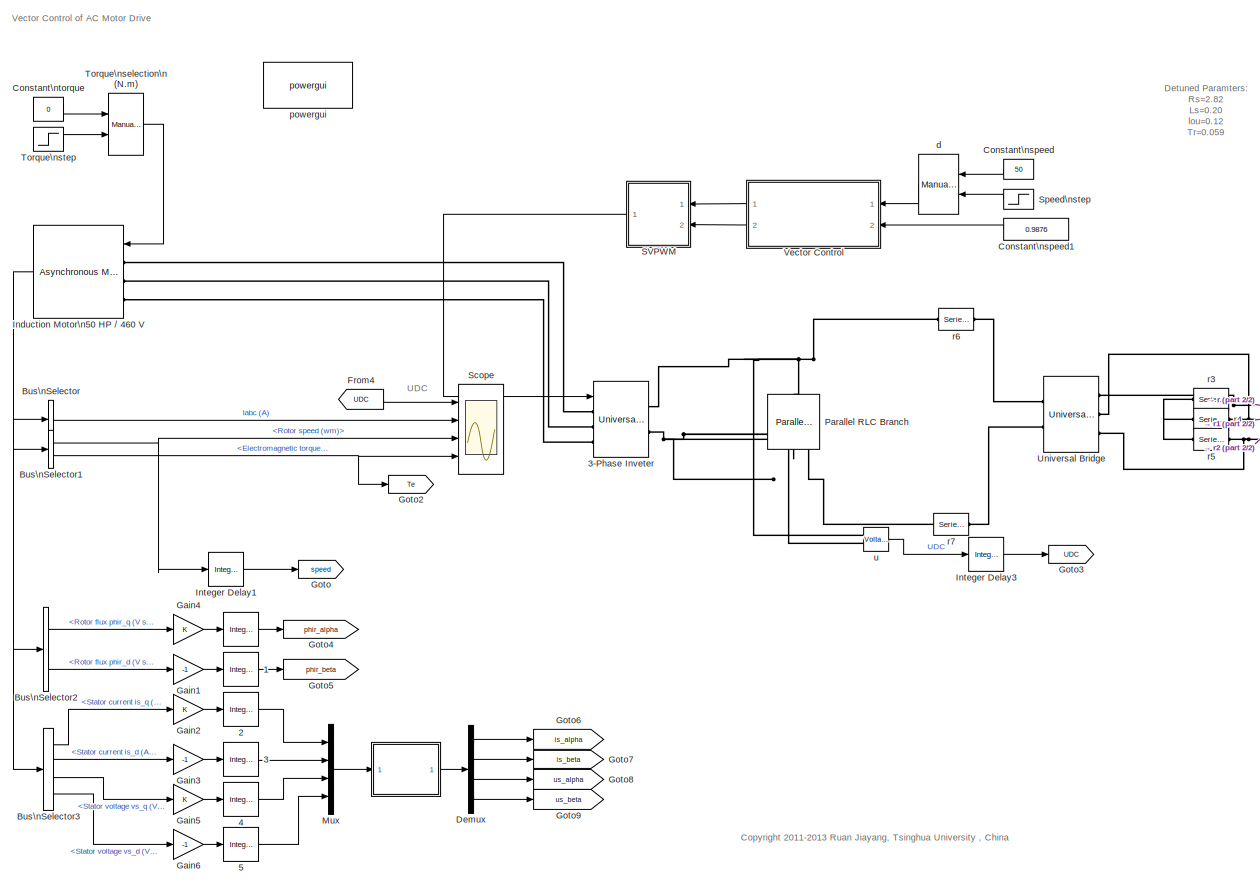
[diagram: root canvas - part 1/2, most of the canvas]
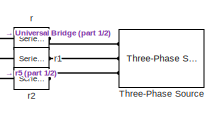
[diagram: root canvas - part 2/2, middle right region]
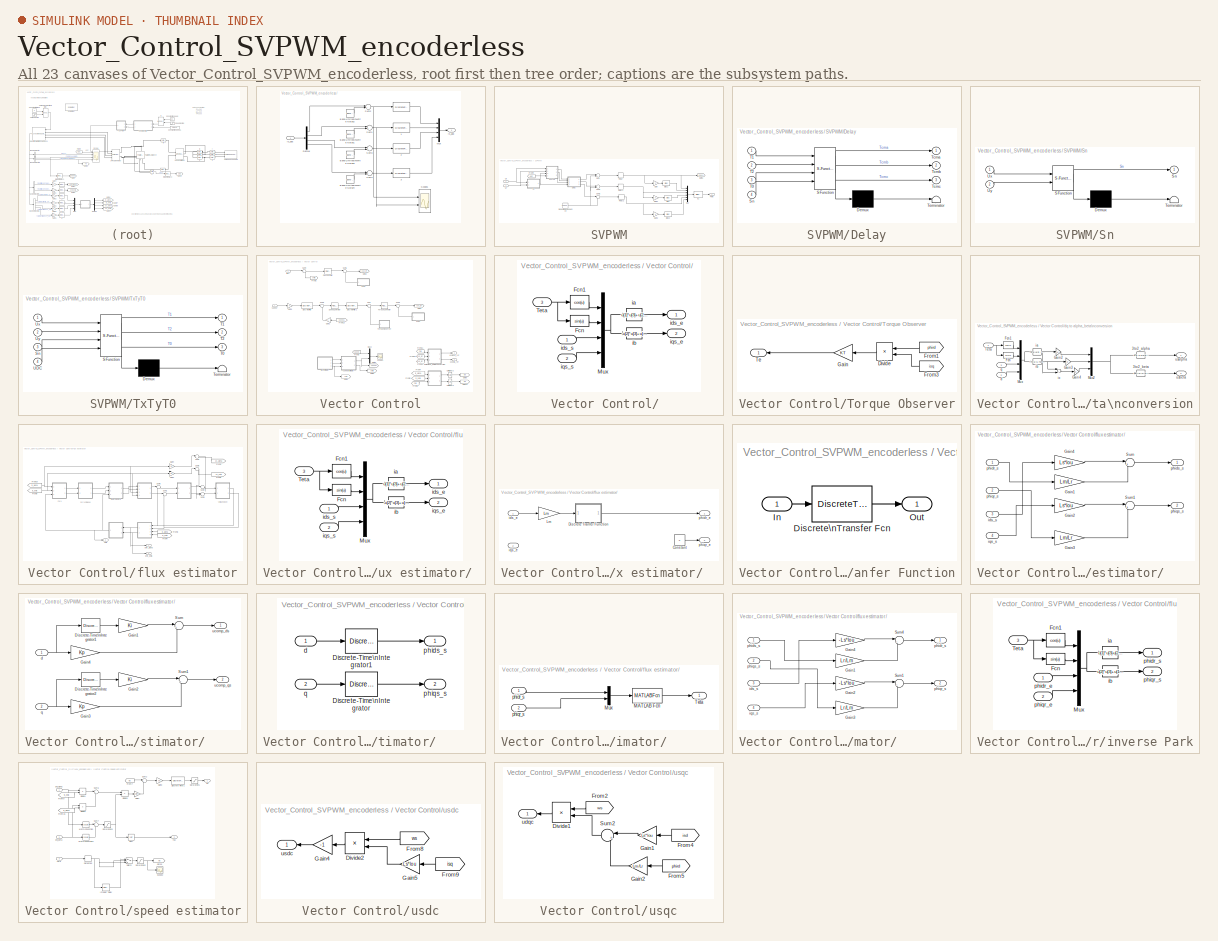
[diagram: thumbnail index - all 23 canvases of the model, root first then tree order]
MODEL Vector_Control_SVPWM_encoderless
KIND model
CONFIG InitFcn = Ts=1e-6;\nresolute=100;
CONFIG PreLoadFcn = Ts=1e-6;\nresolute=100;\n
BLOCK [Reference]    REF=simulink/Discrete/Integer Delay
  NumDelays = 2
  Ports = [1, 1]
  SID = 1007
  SourceBlock = simulink/Discrete/Integer Delay
  SourceType = Integer Delay
  samptime = Ts
  vinit = 0
BLOCK [SubSystem]       
  FunctionWithSeparateData = off
  MaskCallbackString = |||
  MaskEnableString = on,on,on,on
  MaskHideContents = off
  MaskIconFrame = on
  MaskIconOpaque = on
  MaskIconRotate = none
  MaskIconUnits = autoscale
  MaskInitialization = TN=1/SF;
  MaskPortRotate = default
  MaskPromptString = Filter Time Constant|Switching Frequecy|Voltage Measurement Noise|Current Measurement Noise
  MaskStyleString = edit,edit,edit,edit
  MaskToolTipString = on,on,on,on
  MaskTunableValueString = on,on,on,on
  MaskValueString = 0.001|5000|0|0.2
  MaskVariables = Tf=@1;SF=@2;VN=@3;CN=@4;
  MaskVisibilityString = on,on,on,on
  MinAlgLoopOccurrences = off
  Opaque = off
  Ports = [1, 1]
  PropExecContextOutsideSubsystem = off
  RTWSystemCode = Auto
  RequestExecContextInheritance = off
  SID = 2972
BLOCK [DiscreteFilter]       /    
  Denominator = [Tf/Ts+1 -Tf/Ts]
  Ports = [1, 1]
  SID = 2995
  SampleTime = Ts
BLOCK [DiscreteFilter]       /    1
  Denominator = [Tf/Ts+1 -Tf/Ts]
  Ports = [1, 1]
  SID = 3001
  SampleTime = Ts
BLOCK [DiscreteFilter]       /    2
  Denominator = [Tf/Ts+1 -Tf/Ts]
  Ports = [1, 1]
  SID = 3002
  SampleTime = Ts
BLOCK [DiscreteFilter]       /    3
  Denominator = [Tf/Ts+1 -Tf/Ts]
  Ports = [1, 1]
  SID = 3003
  SampleTime = Ts
BLOCK [Reference]       /Band-Limited\nWhite Noise1  REF=simulink/Sources/Band-Limited\nWhite Noise
  Cov = [CN*TN]
  FunctionWithSeparateData = off
  Ports = [0, 1]
  RTWMemSecDataConstants = Inherit from model
  RTWMemSecDataInternal = Inherit from model
  RTWMemSecDataParameters = Inherit from model
  RTWMemSecFuncExecute = Inherit from model
  RTWMemSecFuncInitTerm = Inherit from model
  SID = 2974
  ShowPortLabels = FromPortIcon
  SourceBlock = simulink/Sources/Band-Limited\nWhite Noise
  SourceType = Band-Limited White Noise.
  SystemSampleTime = -1
  Ts = TN
  VectorParams1D = on
  seed = [2334123]
BLOCK [Reference]       /Band-Limited\nWhite Noise2  REF=simulink/Sources/Band-Limited\nWhite Noise
  Cov = [CN*TN]
  FunctionWithSeparateData = off
  Ports = [0, 1]
  RTWMemSecDataConstants = Inherit from model
  RTWMemSecDataInternal = Inherit from model
  RTWMemSecDataParameters = Inherit from model
  RTWMemSecFuncExecute = Inherit from model
  RTWMemSecFuncInitTerm = Inherit from model
  SID = 2975
  ShowPortLabels = FromPortIcon
  SourceBlock = simulink/Sources/Band-Limited\nWhite Noise
  SourceType = Band-Limited White Noise.
  SystemSampleTime = -1
  Ts = TN
  VectorParams1D = on
  seed = [233]
BLOCK [Reference]       /Band-Limited\nWhite Noise3  REF=simulink/Sources/Band-Limited\nWhite Noise
  Cov = [VN*TN]
  FunctionWithSeparateData = off
  Ports = [0, 1]
  RTWMemSecDataConstants = Inherit from model
  RTWMemSecDataInternal = Inherit from model
  RTWMemSecDataParameters = Inherit from model
  RTWMemSecFuncExecute = Inherit from model
  RTWMemSecFuncInitTerm = Inherit from model
  SID = 2976
  ShowPortLabels = FromPortIcon
  SourceBlock = simulink/Sources/Band-Limited\nWhite Noise
  SourceType = Band-Limited White Noise.
  SystemSampleTime = -1
  Ts = TN
  VectorParams1D = on
  seed = [23345451]
BLOCK [Reference]       /Band-Limited\nWhite Noise4  REF=simulink/Sources/Band-Limited\nWhite Noise
  Cov = [VN*TN]
  FunctionWithSeparateData = off
  Ports = [0, 1]
  RTWMemSecDataConstants = Inherit from model
  RTWMemSecDataInternal = Inherit from model
  RTWMemSecDataParameters = Inherit from model
  RTWMemSecFuncExecute = Inherit from model
  RTWMemSecFuncInitTerm = Inherit from model
  SID = 2999
  ShowPortLabels = FromPortIcon
  SourceBlock = simulink/Sources/Band-Limited\nWhite Noise
  SourceType = Band-Limited White Noise.
  SystemSampleTime = -1
  Ts = TN
  VectorParams1D = on
  seed = [3345451]
BLOCK [Demux]       /Demux
  DisplayOption = bar
  Ports = [1, 4]
  SID = 2977
BLOCK [Mux]       /Mux
  DisplayOption = bar
  Ports = [4, 1]
  SID = 2978
BLOCK [Scope]       /Scope1
  DataFormat = StructureWithTime
  Decimation = resolute
  Floating = off
  LimitDataPoints = off
  NumInputPorts = 2
  Ports = [2]
  SID = 3038
  SampleTime = 5e-6
  SaveName = ScopeData4
  TimeRange = 2
  YMax = -180~35
  YMin = -310~-40
BLOCK [Sum]       /Sum1
  IconShape = round
  InputSameDT = off
  Inputs = |++
  OutDataType = fixdt(1, 16)
  OutDataTypeMode = Inherit via internal rule
  OutDataTypeStr = Inherit: Inherit via internal rule
  OutScaling = 2^0
  Ports = [2, 1]
  SID = 2979
  SampleTime = Ts
  SaturateOnIntegerOverflow = off
BLOCK [Sum]       /Sum2
  IconShape = round
  InputSameDT = off
  Inputs = |++
  OutDataType = fixdt(1, 16)
  OutDataTypeMode = Inherit via internal rule
  OutDataTypeStr = Inherit: Inherit via internal rule
  OutScaling = 2^0
  Ports = [2, 1]
  SID = 2980
  SampleTime = Ts
  SaturateOnIntegerOverflow = off
BLOCK [Sum]       /Sum3
  IconShape = round
  InputSameDT = off
  Inputs = |++
  OutDataType = fixdt(1, 16)
  OutDataTypeMode = Inherit via internal rule
  OutDataTypeStr = Inherit: Inherit via internal rule
  OutScaling = 2^0
  Ports = [2, 1]
  SID = 2981
  SampleTime = Ts
  SaturateOnIntegerOverflow = off
BLOCK [Sum]       /Sum4
  IconShape = round
  InputSameDT = off
  Inputs = |++
  OutDataType = fixdt(1, 16)
  OutDataTypeMode = Inherit via internal rule
  OutDataTypeStr = Inherit: Inherit via internal rule
  OutScaling = 2^0
  Ports = [2, 1]
  SID = 3000
  SampleTime = Ts
  SaturateOnIntegerOverflow = off
BLOCK [Inport]       /is_abc
  IconDisplay = Port number
  SID = 2973
BLOCK [Outport]       /is_abc 
  IconDisplay = Port number
  SID = 2982
BLOCK [Reference]  1  REF=simulink/Discrete/Integer Delay
  NumDelays = 2
  Ports = [1, 1]
  SID = 1008
  SourceBlock = simulink/Discrete/Integer Delay
  SourceType = Integer Delay
  samptime = Ts
  vinit = 0
BLOCK [Reference]  2  REF=simulink/Discrete/Integer Delay
  NumDelays = 1
  Ports = [1, 1]
  SID = 1009
  SourceBlock = simulink/Discrete/Integer Delay
  SourceType = Integer Delay
  samptime = Ts
  vinit = 0
BLOCK [Reference]  3  REF=simulink/Discrete/Integer Delay
  NumDelays = 1
  Ports = [1, 1]
  SID = 1010
  SourceBlock = simulink/Discrete/Integer Delay
  SourceType = Integer Delay
  samptime = Ts
  vinit = 0
BLOCK [Reference]  4  REF=simulink/Discrete/Integer Delay
  NumDelays = 1
  Ports = [1, 1]
  SID = 1130
  SourceBlock = simulink/Discrete/Integer Delay
  SourceType = Integer Delay
  samptime = Ts
  vinit = 0
BLOCK [Reference]  5  REF=simulink/Discrete/Integer Delay
  NumDelays = 1
  Ports = [1, 1]
  SID = 1131
  SourceBlock = simulink/Discrete/Integer Delay
  SourceType = Integer Delay
  samptime = Ts
  vinit = 0
BLOCK [Reference] 3-Phase Inveter  REF=powerlib/Power\nElectronics/Universal Bridge
  Arms = 3
  Device = IGBT / Diodes
  DialogController = POWERSYS.PowerSysDialog
  ForwardVoltage = 0
  ForwardVoltages = [1.1  0.75]
  FunctionWithSeparateData = off
  GTOparameters = [ 10e-6 , 20e-6 ]
  IGBTparameters = [ 1e-6 , 2e-6 ]
  Lon = 0
  Measurements = None
  Measurements_2 = None
  Ports = [1, 0, 0, 0, 0, 3, 2]
  RTWMemSecDataConstants = Inherit from model
  RTWMemSecDataInternal = Inherit from model
  RTWMemSecDataParameters = Inherit from model
  RTWMemSecFuncExecute = Inherit from model
  RTWMemSecFuncInitTerm = Inherit from model
  Ron = 1e-3
  SID = 924
  ShowPortLabels = FromPortIcon
  SnubberCapacitance = 1e-6
  SnubberResistance = 1e5
  SourceBlock = powerlib/Power\nElectronics/Universal Bridge
  SourceType = Universal Bridge
  SystemSampleTime = -1
  converterType = Rectifier
BLOCK [BusSelector] Bus\nSelector
  OutputAsBus = on
  OutputSignals = Stator measurements.Stator current is_a (A),Stator measurements.Stator current is_b (A),Stator measurements.Stator current is_c (A)
  Ports = [1, 1]
  SID = 1
BLOCK [BusSelector] Bus\nSelector1
  OutputSignals = Mechanical.Rotor speed (wm),Mechanical.Electromagnetic torque Te (N*m)
  Ports = [1, 2]
  SID = 2
BLOCK [BusSelector] Bus\nSelector2
  OutputSignals = Rotor measurements.Rotor flux phir_q (V s),Rotor measurements.Rotor flux phir_d (V s)
  Ports = [1, 2]
  SID = 963
BLOCK [BusSelector] Bus\nSelector3
  OutputSignals = Stator measurements.Stator current  is_q (A),Stator measurements.Stator current is_d (A),Stator measurements.Stator voltage vs_q (V),Stator measurements.Stator voltage vs_d (V)
  Ports = [1, 4]
  SID = 3004
BLOCK [Constant] Constant\nspeed
  OutDataType = sfix(16)
  OutScaling = 2^0
  SID = 3
  SampleTime = Ts
  Value = 50
BLOCK [Constant] Constant\nspeed1
  OutDataType = sfix(16)
  OutScaling = 2^0
  SID = 999
  SampleTime = Ts
  Value = 0.9876
BLOCK [Constant] Constant\ntorque
  OutDataType = sfix(16)
  OutScaling = 2^0
  SID = 4
  SampleTime = Ts
  Value = 0
BLOCK [Demux] Demux
  DisplayOption = bar
  Ports = [1, 4]
  SID = 3006
BLOCK [From] From4
  CloseFcn = tagdialog Close
  GotoTag = UDC
  SID = 927
  TagVisibility = global
BLOCK [Gain] Gain1
  Gain = -1
  OutDataType = fixdt(1, 16)
  OutDataTypeMode = Inherit via internal rule
  OutDataTypeStr = Inherit: Inherit via internal rule
  OutScaling = 2^0
  ParamDataTypeStr = Inherit: Inherit via internal rule
  ParameterDataType = fixdt(1, 16)
  ParameterDataTypeMode = Inherit via internal rule
  ParameterScaling = 2^0
  SID = 965
  SaturateOnIntegerOverflow = off
BLOCK [Gain] Gain2
  OutDataType = fixdt(1, 16)
  OutDataTypeMode = Inherit via internal rule
  OutDataTypeStr = Inherit: Inherit via internal rule
  OutScaling = 2^0
  ParamDataTypeStr = Inherit: Inherit via internal rule
  ParameterDataType = fixdt(1, 16)
  ParameterDataTypeMode = Inherit via internal rule
  ParameterScaling = 2^0
  SID = 969
  SaturateOnIntegerOverflow = off
BLOCK [Gain] Gain3
  Gain = -1
  OutDataType = fixdt(1, 16)
  OutDataTypeMode = Inherit via internal rule
  OutDataTypeStr = Inherit: Inherit via internal rule
  OutScaling = 2^0
  ParamDataTypeStr = Inherit: Inherit via internal rule
  ParameterDataType = fixdt(1, 16)
  ParameterDataTypeMode = Inherit via internal rule
  ParameterScaling = 2^0
  SID = 971
  SaturateOnIntegerOverflow = off
BLOCK [Gain] Gain4
  OutDataType = fixdt(1, 16)
  OutDataTypeMode = Inherit via internal rule
  OutDataTypeStr = Inherit: Inherit via internal rule
  OutScaling = 2^0
  ParamDataTypeStr = Inherit: Inherit via internal rule
  ParameterDataType = fixdt(1, 16)
  ParameterDataTypeMode = Inherit via internal rule
  ParameterScaling = 2^0
  SID = 964
  SaturateOnIntegerOverflow = off
BLOCK [Gain] Gain5
  OutDataType = fixdt(1, 16)
  OutDataTypeMode = Inherit via internal rule
  OutDataTypeStr = Inherit: Inherit via internal rule
  OutScaling = 2^0
  ParamDataTypeStr = Inherit: Inherit via internal rule
  ParameterDataType = fixdt(1, 16)
  ParameterDataTypeMode = Inherit via internal rule
  ParameterScaling = 2^0
  SID = 1132
  SaturateOnIntegerOverflow = off
BLOCK [Gain] Gain6
  Gain = -1
  OutDataType = fixdt(1, 16)
  OutDataTypeMode = Inherit via internal rule
  OutDataTypeStr = Inherit: Inherit via internal rule
  OutScaling = 2^0
  ParamDataTypeStr = Inherit: Inherit via internal rule
  ParameterDataType = fixdt(1, 16)
  ParameterDataTypeMode = Inherit via internal rule
  ParameterScaling = 2^0
  SID = 1133
  SaturateOnIntegerOverflow = off
BLOCK [Goto] Goto
  GotoTag = speed
  SID = 5
  TagVisibility = global
BLOCK [Goto] Goto2
  GotoTag = Te
  SID = 627
  TagVisibility = global
BLOCK [Goto] Goto3
  GotoTag = UDC
  SID = 926
  TagVisibility = global
BLOCK [Goto] Goto4
  GotoTag = phir_alpha
  SID = 966
  TagVisibility = global
BLOCK [Goto] Goto5
  GotoTag = phir_beta
  SID = 967
  TagVisibility = global
BLOCK [Goto] Goto6
  GotoTag = is_alpha
  SID = 970
  TagVisibility = global
BLOCK [Goto] Goto7
  GotoTag = is_beta
  SID = 972
  TagVisibility = global
BLOCK [Goto] Goto8
  GotoTag = us_alpha
  SID = 1134
  TagVisibility = global
BLOCK [Goto] Goto9
  GotoTag = us_beta
  SID = 1135
  TagVisibility = global
BLOCK [Reference] Induction Motor\n50 HP // 460 V  REF=powerlib/Machines/Asynchronous Machine\nSI Units
  AttributesFormatString = \\n
  DialogController = POWERSYS.PowerSysDialog
  FunctionWithSeparateData = off
  InitialConditions = [1, 0 ,  0 , 0 , 0 , 0 , 0 , 0 ]
  IterativeModel = Forward Euler
  Lm = 188.2e-3
  LoadFlowParameters = 0
  Mechanical = [0.3 0.01 2]
  MechanicalLoad = Torque Tm
  NominalParameters = [2200, 380, 50]
  PolePairs = 2
  Ports = [1, 1, 0, 0, 0, 3]
  PresetModel = No
  RTWMemSecDataConstants = Inherit from model
  RTWMemSecDataInternal = Inherit from model
  RTWMemSecDataParameters = Inherit from model
  RTWMemSecFuncExecute = Inherit from model
  RTWMemSecFuncInitTerm = Inherit from model
  ReferenceFrame = Stationary
  Rotor = [3.11 11.8e-3]
  RotorType = Squirrel-cage
  SID = 8
  Saturation = [0.6883 0.9028 1.1135 1.2559 1.3970 1.7538 2.1504 2.4988 2.6956 3.0579 3.7375 4.2552 5.1653 5.8110 6.5024;74.1928 98.0992 121.6600 137.3550 152.7109 190.0931 228.8721 259.2975 274.7375 301.8574 342.5384 366.6332 399.5942 417.9914 434.8974]
  ShowDetailedParameters = on
  ShowPortLabels = FromPortIcon
  SimulateSaturation = off
  SourceBlock = powerlib/Machines/Asynchronous Machine\nSI Units
  SourceType = Asynchronous Machine
  Stator = [2.76 11.8e-3]
  SystemSampleTime = -1
  TsBlock = Ts
  TsPowergui = 0
  Units = SI
BLOCK [Reference] Integer Delay1  REF=simulink/Discrete/Integer Delay
  NumDelays = 2
  Ports = [1, 1]
  SID = 787
  SourceBlock = simulink/Discrete/Integer Delay
  SourceType = Integer Delay
  samptime = Ts
  vinit = 0
BLOCK [Reference] Integer Delay3  REF=simulink/Discrete/Integer Delay
  NumDelays = 1
  Ports = [1, 1]
  SID = 929
  SourceBlock = simulink/Discrete/Integer Delay
  SourceType = Integer Delay
  samptime = Ts
  vinit = 0
BLOCK [Mux] Mux
  DisplayOption = bar
  Ports = [4, 1]
  SID = 3005
BLOCK [Reference] Parallel RLC Branch  REF=powerlib/Elements/Parallel RLC Branch
  AttributesFormatString = \\n
  BranchType = RC
  Capacitance = 330e-6*5
  DialogController = POWERSYS.PowerSysDialog
  Inductance = 1e-3
  InitialCurrent = 0
  InitialVoltage = 530
  LConnTagsString = a
  LeftPortType = p1
  Measurements = None
  PhysicalDomain = powersysdomain
  Ports = [0, 0, 0, 0, 0, 1, 1]
  RConnTagsString = __new0
  Resistance = 330e3
  RightPortType = p1
  SID = 905
  SetiL0 = off
  Setx0 = on
  SourceBlock = powerlib/Elements/Parallel RLC Branch
  SourceType = Parallel RLC Branch
  SubClassName = unknown
BLOCK [SubSystem] SVPWM
  FunctionWithSeparateData = off
  MaskEnableString = on
  MaskHideContents = off
  MaskIconFrame = on
  MaskIconOpaque = on
  MaskIconRotate = none
  MaskIconUnits = autoscale
  MaskPortRotate = default
  MaskPromptString = Dead Time (s)
  MaskStyleString = edit
  MaskToolTipString = on
  MaskTunableValueString = on
  MaskValueString = 2e-6
  MaskVariables = DT=@1;
  MaskVisibilityString = on
  MinAlgLoopOccurrences = off
  Opaque = off
  Ports = [2, 1]
  PropExecContextOutsideSubsystem = off
  RTWSystemCode = Auto
  RequestExecContextInheritance = off
  SID = 839
BLOCK [Bias] SVPWM/Bias
  Bias = 1
  SID = 842
  SaturateOnIntegerOverflow = off
BLOCK [Bias] SVPWM/Bias1
  Bias = 1
  SID = 843
  SaturateOnIntegerOverflow = off
BLOCK [Bias] SVPWM/Bias2
  Bias = 1
  SID = 844
  SaturateOnIntegerOverflow = off
BLOCK [SubSystem] SVPWM/Delay
  FunctionWithSeparateData = off
  MaskDescription = Embedded MATLAB block
  MaskDisplay = disp('D');
  MaskHideContents = off
  MaskIconFrame = on
  MaskIconOpaque = off
  MaskIconRotate = none
  MaskIconUnits = autoscale
  MaskPortRotate = default
  MaskSelfModifiable = on
  MaskType = Stateflow
  MinAlgLoopOccurrences = off
  Opaque = off
  PermitHierarchicalResolution = ExplicitOnly
  Ports = [4, 3]
  PropExecContextOutsideSubsystem = off
  RTWSystemCode = Auto
  RequestExecContextInheritance = off
  SID = 845
  TreatAsAtomicUnit = on
BLOCK [Demux] SVPWM/Delay/ Demux 
  Outputs = 1
  Ports = [1, 1]
  SID = 12
BLOCK [S-Function] SVPWM/Delay/ SFunction 
  EnableBusSupport = on
  FunctionName = sf_sfun
  PortCounts = [4 4]
  Ports = [4, 4]
  SID = 11
  Tag = Stateflow S-Function Vector_Control_SVPWM_encoderless 4
BLOCK [Terminator] SVPWM/Delay/ Terminator 
  SID = 14
BLOCK [Inport] SVPWM/Delay/Sn
  IconDisplay = Port number
  OutDataType = sfix(16)
  OutScaling = 2^0
  Port = 4
  SID = 4
BLOCK [Inport] SVPWM/Delay/T0
  IconDisplay = Port number
  OutDataType = sfix(16)
  OutScaling = 2^0
  Port = 3
  SID = 3
BLOCK [Inport] SVPWM/Delay/T1
  IconDisplay = Port number
  OutDataType = sfix(16)
  OutScaling = 2^0
  SID = 1
BLOCK [Inport] SVPWM/Delay/T2
  IconDisplay = Port number
  OutDataType = sfix(16)
  OutScaling = 2^0
  Port = 2
  SID = 2
BLOCK [Outport] SVPWM/Delay/Tcma
  IconDisplay = Port number
  OutDataType = sfix(16)
  OutScaling = 2^0
  SID = 8
BLOCK [Outport] SVPWM/Delay/Tcmb
  IconDisplay = Port number
  OutDataType = sfix(16)
  OutScaling = 2^0
  Port = 2
  SID = 9
BLOCK [Outport] SVPWM/Delay/Tcmc
  IconDisplay = Port number
  OutDataType = sfix(16)
  OutScaling = 2^0
  Port = 3
  SID = 10
BLOCK [From] SVPWM/From4
  CloseFcn = tagdialog Close
  GotoTag = UDC
  SID = 928
  TagVisibility = global
BLOCK [Gain] SVPWM/Gain
  Gain = -1
  OutDataType = fixdt(1, 16)
  OutDataTypeMode = Inherit via internal rule
  OutDataTypeStr = Inherit: Inherit via internal rule
  OutScaling = 2^0
  ParamDataTypeStr = Inherit: Inherit via internal rule
  ParameterDataType = fixdt(1, 16)
  ParameterDataTypeMode = Inherit via internal rule
  ParameterScaling = 2^0
  SID = 846
  SaturateOnIntegerOverflow = off
BLOCK [Gain] SVPWM/Gain1
  Gain = -1
  OutDataType = fixdt(1, 16)
  OutDataTypeMode = Inherit via internal rule
  OutDataTypeStr = Inherit: Inherit via internal rule
  OutScaling = 2^0
  ParamDataTypeStr = Inherit: Inherit via internal rule
  ParameterDataType = fixdt(1, 16)
  ParameterDataTypeMode = Inherit via internal rule
  ParameterScaling = 2^0
  SID = 847
  SaturateOnIntegerOverflow = off
BLOCK [Gain] SVPWM/Gain2
  Gain = -1
  OutDataType = fixdt(1, 16)
  OutDataTypeMode = Inherit via internal rule
  OutDataTypeStr = Inherit: Inherit via internal rule
  OutScaling = 2^0
  ParamDataTypeStr = Inherit: Inherit via internal rule
  ParameterDataType = fixdt(1, 16)
  ParameterDataTypeMode = Inherit via internal rule
  ParameterScaling = 2^0
  SID = 848
  SaturateOnIntegerOverflow = off
BLOCK [Goto] SVPWM/Goto2
  GotoTag = pulse1
  SID = 956
  TagVisibility = global
BLOCK [Mux] SVPWM/Mux
  DisplayOption = bar
  Inputs = 6
  Ports = [6, 1]
  SID = 849
BLOCK [Outport] SVPWM/PWM
  IconDisplay = Port number
  SID = 860
BLOCK [Relay] SVPWM/Relay
  OffSwitchValue = 0
  OnSwitchValue = 0
  OutDataType = sfix(16)
  OutScaling = 2^0
  SID = 851
BLOCK [Relay] SVPWM/Relay1
  OffSwitchValue = 0
  OnSwitchValue = 0
  OutDataType = sfix(16)
  OutScaling = 2^0
  SID = 852
BLOCK [Relay] SVPWM/Relay2
  OffSwitchValue = 0
  OnSwitchValue = 0
  OutDataType = sfix(16)
  OutScaling = 2^0
  SID = 853
BLOCK [Reference] SVPWM/Repeating\nSequence  REF=simulink/Sources/Repeating\nSequence
  FunctionWithSeparateData = off
  Ports = [0, 1]
  RTWMemSecDataConstants = Inherit from model
  RTWMemSecDataInternal = Inherit from model
  RTWMemSecDataParameters = Inherit from model
  RTWMemSecFuncExecute = Inherit from model
  RTWMemSecFuncInitTerm = Inherit from model
  SID = 854
  ShowPortLabels = FromPortIcon
  SourceBlock = simulink/Sources/Repeating\nSequence
  SourceType = Repeating table
  SystemSampleTime = -1
  rep_seq_t = [0 1/5000/2 1/5000]
  rep_seq_y = [0 1/5000/2 0]
BLOCK [SubSystem] SVPWM/Sn
  FunctionWithSeparateData = off
  MaskDescription = Embedded MATLAB block
  MaskDisplay = disp('S');
  MaskHideContents = off
  MaskIconFrame = on
  MaskIconOpaque = off
  MaskIconRotate = none
  MaskIconUnits = autoscale
  MaskPortRotate = default
  MaskSelfModifiable = on
  MaskType = Stateflow
  MinAlgLoopOccurrences = off
  Opaque = off
  PermitHierarchicalResolution = ExplicitOnly
  Ports = [2, 1]
  PropExecContextOutsideSubsystem = off
  RTWSystemCode = Auto
  RequestExecContextInheritance = off
  SID = 855
  TreatAsAtomicUnit = on
BLOCK [Demux] SVPWM/Sn/ Demux 
  Outputs = 1
  Ports = [1, 1]
  SID = 8
BLOCK [S-Function] SVPWM/Sn/ SFunction 
  EnableBusSupport = on
  FunctionName = sf_sfun
  PortCounts = [2 2]
  Ports = [2, 2]
  SID = 7
  Tag = Stateflow S-Function Vector_Control_SVPWM_encoderless 1
BLOCK [Terminator] SVPWM/Sn/ Terminator 
  SID = 10
BLOCK [Outport] SVPWM/Sn/Sn
  IconDisplay = Port number
  OutDataType = sfix(16)
  OutScaling = 2^0
  SID = 6
BLOCK [Inport] SVPWM/Sn/Ux
  IconDisplay = Port number
  OutDataType = sfix(16)
  OutScaling = 2^0
  SID = 1
BLOCK [Inport] SVPWM/Sn/Uy
  IconDisplay = Port number
  OutDataType = sfix(16)
  OutScaling = 2^0
  Port = 2
  SID = 2
BLOCK [Sum] SVPWM/Sum
  IconShape = round
  InputSameDT = off
  Inputs = |-+
  OutDataType = sfix(16)
  OutDataTypeMode = Inherit via internal rule
  OutDataTypeStr = Inherit: Inherit via internal rule
  OutScaling = 2^0
  Ports = [2, 1]
  SID = 856
  SaturateOnIntegerOverflow = off
BLOCK [Sum] SVPWM/Sum1
  IconShape = round
  InputSameDT = off
  Inputs = |-+
  OutDataType = sfix(16)
  OutDataTypeMode = Inherit via internal rule
  OutDataTypeStr = Inherit: Inherit via internal rule
  OutScaling = 2^0
  Ports = [2, 1]
  SID = 857
  SaturateOnIntegerOverflow = off
BLOCK [Sum] SVPWM/Sum2
  IconShape = round
  InputSameDT = off
  Inputs = |-+
  OutDataType = sfix(16)
  OutDataTypeMode = Inherit via internal rule
  OutDataTypeStr = Inherit: Inherit via internal rule
  OutScaling = 2^0
  Ports = [2, 1]
  SID = 858
  SaturateOnIntegerOverflow = off
BLOCK [SubSystem] SVPWM/TxTyT0
  FunctionWithSeparateData = off
  MaskDescription = Embedded MATLAB block
  MaskDisplay = disp('T');
  MaskHideContents = off
  MaskIconFrame = on
  MaskIconOpaque = off
  MaskIconRotate = none
  MaskIconUnits = autoscale
  MaskPortRotate = default
  MaskSelfModifiable = on
  MaskType = Stateflow
  MinAlgLoopOccurrences = off
  Opaque = off
  PermitHierarchicalResolution = ExplicitOnly
  Ports = [4, 3]
  PropExecContextOutsideSubsystem = off
  RTWSystemCode = Auto
  RequestExecContextInheritance = off
  SID = 859
  TreatAsAtomicUnit = on
BLOCK [Demux] SVPWM/TxTyT0/ Demux 
  Outputs = 1
  Ports = [1, 1]
  SID = 11
BLOCK [S-Function] SVPWM/TxTyT0/ SFunction 
  EnableBusSupport = on
  FunctionName = sf_sfun
  PortCounts = [4 4]
  Ports = [4, 4]
  SID = 10
  Tag = Stateflow S-Function Vector_Control_SVPWM_encoderless 3
BLOCK [Terminator] SVPWM/TxTyT0/ Terminator 
  SID = 13
BLOCK [Inport] SVPWM/TxTyT0/Sn
  IconDisplay = Port number
  OutDataType = sfix(16)
  OutScaling = 2^0
  Port = 3
  SID = 3
BLOCK [Outport] SVPWM/TxTyT0/T0
  IconDisplay = Port number
  OutDataType = sfix(16)
  OutScaling = 2^0
  Port = 3
  SID = 9
BLOCK [Outport] SVPWM/TxTyT0/T1
  IconDisplay = Port number
  OutDataType = sfix(16)
  OutScaling = 2^0
  SID = 7
BLOCK [Outport] SVPWM/TxTyT0/T2
  IconDisplay = Port number
  OutDataType = sfix(16)
  OutScaling = 2^0
  Port = 2
  SID = 8
BLOCK [Inport] SVPWM/TxTyT0/UDC
  IconDisplay = Port number
  Port = 4
  SID = 14
BLOCK [Inport] SVPWM/TxTyT0/Ux
  IconDisplay = Port number
  OutDataType = sfix(16)
  OutScaling = 2^0
  SID = 1
BLOCK [Inport] SVPWM/TxTyT0/Uy
  IconDisplay = Port number
  OutDataType = sfix(16)
  OutScaling = 2^0
  Port = 2
  SID = 2
BLOCK [Inport] SVPWM/Ux
  IconDisplay = Port number
  OutDataType = fixdt(1, 16)
  OutScaling = 2^0
  SID = 840
BLOCK [Inport] SVPWM/Uy
  IconDisplay = Port number
  OutDataType = fixdt(1, 16)
  OutScaling = 2^0
  Port = 2
  SID = 841
BLOCK [Reference] SVPWM/d1  REF=powerlib_extras/Discrete \nControl Blocks/Discrete\nOn//Off Delay
  DialogController = POWERSYS.PowerSysDialog
  FunctionWithSeparateData = off
  Ports = [1, 1]
  RTWMemSecDataConstants = Inherit from model
  RTWMemSecDataInternal = Inherit from model
  RTWMemSecDataParameters = Inherit from model
  RTWMemSecFuncExecute = Inherit from model
  RTWMemSecFuncInitTerm = Inherit from model
  SID = 938
  ShowPortLabels = none
  SourceBlock = powerlib_extras/Discrete \nControl Blocks/Discrete\nOn//Off Delay
  SourceType = Discrete On/Off Delay
  SystemSampleTime = -1
  Ts = Ts
  delay = DT
  ic = 0
  type_delay = On delay
BLOCK [Scope] Scope
  DataFormat = StructureWithTime
  Decimation = resolute
  Floating = off
  LimitDataPoints = off
  NumInputPorts = 4
  Ports = [4]
  SID = 11
  SampleTime = 5e-6
  TimeRange = 2
  YMax = -180~35~80.0008~25
  YMin = -310~-40~79.999~-20
  ZoomMode = yonly
BLOCK [Step] Speed\nstep
  After = -5
  Before = 5
  SID = 12
  SampleTime = Ts
BLOCK [Reference] Three-Phase Source  REF=powerlib/Electrical\nSources/Three-Phase Source
  BaseVoltage = 380
  DialogController = POWERSYS.PowerSysDialog
  Frequency = 50
  FunctionWithSeparateData = off
  Inductance = 1e-6
  InternalConnection = Yg
  PhaseAngle = 0
  Ports = [0, 0, 0, 0, 0, 0, 3]
  RTWMemSecDataConstants = Inherit from model
  RTWMemSecDataInternal = Inherit from model
  RTWMemSecDataParameters = Inherit from model
  RTWMemSecFuncExecute = Inherit from model
  RTWMemSecFuncInitTerm = Inherit from model
  Resistance = 1e-5
  SID = 908
  ShortCircuitLevel = 1e8
  ShowPortLabels = FromPortIcon
  SourceBlock = powerlib/Electrical\nSources/Three-Phase Source
  SourceType = Three-Phase Source
  SpecifyImpedance = off
  SystemSampleTime = -1
  Voltage = 380
  XRratio = 0.1
BLOCK [Reference] Torque\nselection\n(N.m)  REF=simulink/Signal\nRouting/Manual Switch
  FunctionWithSeparateData = off
  Ports = [2, 1]
  RTWMemSecDataConstants = Inherit from model
  RTWMemSecDataInternal = Inherit from model
  RTWMemSecDataParameters = Inherit from model
  RTWMemSecFuncExecute = Inherit from model
  RTWMemSecFuncInitTerm = Inherit from model
  SID = 13
  ShowPortLabels = FromPortIcon
  SourceBlock = simulink/Signal\nRouting/Manual Switch
  SourceType = Manual Switch
  SystemSampleTime = -1
  action = 0
  sw = 1
  varsize = off
BLOCK [Step] Torque\nstep
  After = 5
  SID = 14
  SampleTime = Ts
  Time = 5
BLOCK [Reference] Universal Bridge  REF=powerlib/Power\nElectronics/Universal Bridge
  Arms = 3
  Device = Diodes
  DialogController = POWERSYS.PowerSysDialog
  ForwardVoltage = 0.7
  ForwardVoltages = [  0  0  ]
  FunctionWithSeparateData = off
  GTOparameters = [ 10e-6 , 20e-6 ]
  IGBTparameters = [ 1e-6 , 2e-6 ]
  Lon = 20e-9
  Measurements = None
  Measurements_2 = None
  Ports = [0, 0, 0, 0, 0, 3, 2]
  RTWMemSecDataConstants = Inherit from model
  RTWMemSecDataInternal = Inherit from model
  RTWMemSecDataParameters = Inherit from model
  RTWMemSecFuncExecute = Inherit from model
  RTWMemSecFuncInitTerm = Inherit from model
  Ron = 1e-3
  SID = 911
  ShowPortLabels = FromPortIcon
  SnubberCapacitance = 1e-6
  SnubberResistance = 1e5
  SourceBlock = powerlib/Power\nElectronics/Universal Bridge
  SourceType = Universal Bridge
  SystemSampleTime = -1
  converterType = Rectifier
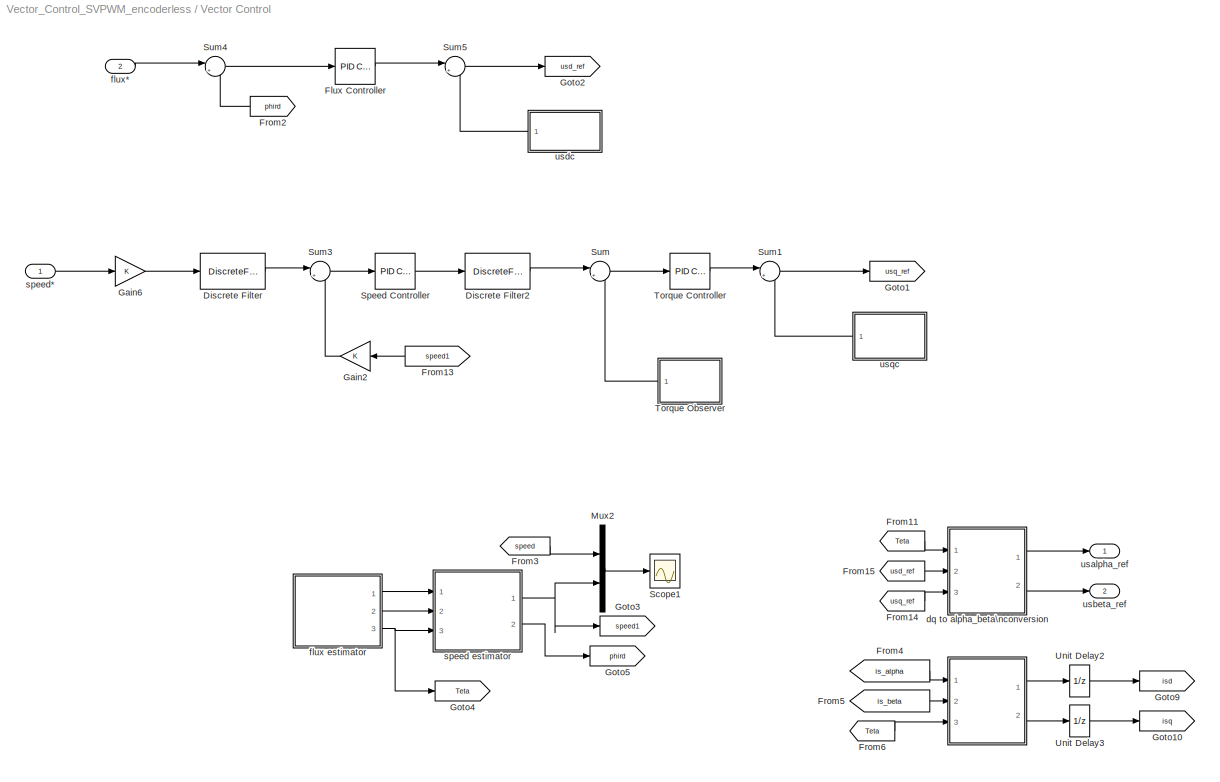
BLOCK [SubSystem] Vector Control
  FunctionWithSeparateData = off
  MaskCallbackString = |||||
  MaskEnableString = on,on,on,on,on,on
  MaskHideContents = off
  MaskIconFrame = on
  MaskIconOpaque = on
  MaskIconRotate = none
  MaskIconUnits = autoscale
  MaskInitialization = Lr=Ls\nRr=Lr/Tr\nLm=sqrt((1-lou)*Ls*Lr)\nTstator=Ls/Rs\nA=((Tstator+Tr)-sqrt((Tstator+Tr)^2-4*lou*Tstator*Tr))/2/lou/Tstator/Tr\nB=((Tstator+Tr)+sqrt((Tstator+Tr)^2-4*lou*Tstator*Tr))/2/lou/Tstator/Tr\ntao=1/A;\nKp_flux=0.5*B^2*Rs*lou*Tstator*Tr/Lm\nKi_flux=Kp_flux/tao\nKT=1.5*2*Lm*0.9876/Lr\nTf=0.001;\nTw=0.01;\ntao=Tstator*lou;\nKp_torque=0.5*Rs*tao/KT/Tf\nKi_torque=Kp_torque/tao\ntao=5*(Tw+2*Tf...<+54ch>
  MaskPortRotate = default
  MaskPromptString = Stator Resistance|Stator Inductance|Total Leakage Coeffecient|Rotor Time Constant|Kp|Ki
  MaskStyleString = edit,edit,edit,edit,edit,edit
  MaskToolTipString = on,on,on,on,on,on
  MaskTunableValueString = on,on,on,on,on,on
  MaskValueString = 2.76|0.2|0.1183|0.0645|18|200
  MaskVariables = Rs=@1;Ls=@2;lou=@3;Tr=@4;Kp=@5;Ki=@6;
  MaskVisibilityString = on,on,on,on,on,on
  MinAlgLoopOccurrences = off
  Opaque = off
  Ports = [2, 2]
  PropExecContextOutsideSubsystem = off
  RTWSystemCode = Auto
  RequestExecContextInheritance = off
  SID = 357
BLOCK [SubSystem] Vector Control/ 
  FunctionWithSeparateData = off
  MaskHideContents = off
  MinAlgLoopOccurrences = off
  Opaque = off
  Ports = [3, 2]
  PropExecContextOutsideSubsystem = off
  RTWSystemCode = Auto
  RequestExecContextInheritance = off
  SID = 3007
BLOCK [Fcn] Vector Control/ /Fcn
  Expr = sin(u)
  SID = 3011
BLOCK [Fcn] Vector Control/ /Fcn1
  Expr = cos(u)
  SID = 3012
BLOCK [Mux] Vector Control/ /Mux
  Ports = [4, 1]
  SID = 3013
BLOCK [Inport] Vector Control/ /Teta
  IconDisplay = Port number
  OutDataType = sfix(16)
  OutScaling = 2^0
  Port = 3
  SID = 3010
BLOCK [Fcn] Vector Control/ /ia
  Expr = u[1]*u[3]+u[2]*u[4]
  SID = 3014
BLOCK [Fcn] Vector Control/ /ib
  Expr = -u[2]*u[3]+u[1]*u[4]
  SID = 3015
BLOCK [Outport] Vector Control/ /ids_e
  IconDisplay = Port number
  OutDataType = fixdt(1, 16)
  OutScaling = 2^0
  SID = 3016
BLOCK [Inport] Vector Control/ /ids_s
  IconDisplay = Port number
  OutDataType = sfix(16)
  OutScaling = 2^0
  SID = 3008
BLOCK [Outport] Vector Control/ /iqs_e
  IconDisplay = Port number
  OutDataType = fixdt(1, 16)
  OutScaling = 2^0
  Port = 2
  SID = 3017
BLOCK [Inport] Vector Control/ /iqs_s
  IconDisplay = Port number
  OutDataType = sfix(16)
  OutScaling = 2^0
  Port = 2
  SID = 3009
BLOCK [DiscreteFilter] Vector Control/Discrete Filter
  Denominator = [0.01/Ts+1 -0.01/Ts]
  Ports = [1, 1]
  SID = 1121
  SampleTime = Ts
BLOCK [DiscreteFilter] Vector Control/Discrete Filter2
  Denominator = [0.001/Ts+1 -0.001/Ts]
  Ports = [1, 1]
  SID = 1123
  SampleTime = Ts
BLOCK [Reference] Vector Control/Flux Controller  REF=simulink/Continuous/PID Controller
  AntiWindupMode = clamping
  Controller = PI
  D = 0
  DOutDataTypeStr = Inherit: Inherit via internal rule
  DOutMax = []
  DOutMin = []
  DParamDataTypeStr = Inherit: Inherit via internal rule
  DParamMax = []
  DParamMin = []
  DialogController = pidpack.PIDConfig.pidDDGCreate
  DialogControllerArgs = DataTag0
  ExternalReset = none
  FilterContinuousStateAttributes = ''
  FilterMethod = Forward Euler
  FilterOutDataTypeStr = Inherit: Inherit via internal rule
  FilterOutMax = []
  FilterOutMin = []
  FilterRTWStateStorageClass = Auto
  FilterStateMustResolveToSignalObject = off
  Form = Parallel
  FunctionWithSeparateData = off
  I = Ki_flux
  IOutDataTypeStr = Inherit: Inherit via internal rule
  IOutMax = []
  IOutMin = []
  IParamDataTypeStr = Inherit: Inherit via internal rule
  IParamMax = []
  IParamMin = []
  IgnoreLimit = off
  InitialConditionForFilter = 0
  InitialConditionForIntegrator = 100
  InitialConditionSource = internal
  IntegratorContinuousStateAttributes = ''
  IntegratorMethod = Forward Euler
  IntegratorOutDataTypeStr = Inherit: Inherit via internal rule
  IntegratorOutMax = []
  IntegratorOutMin = []
  IntegratorRTWStateStorageClass = Auto
  IntegratorStateMustResolveToSignalObject = off
  Kb = 1
  KbOutDataTypeStr = Inherit: Inherit via internal rule
  KbOutMax = []
  KbOutMin = []
  KbParamDataTypeStr = Inherit: Inherit via internal rule
  KbParamMax = []
  KbParamMin = []
  Kt = 1
  KtOutDataTypeStr = Inherit: Inherit via internal rule
  KtOutMax = []
  KtOutMin = []
  KtParamDataTypeStr = Inherit: Inherit via internal rule
  KtParamMax = []
  KtParamMin = []
  LimitOutput = on
  LinearizeAsGain = off
  LockScale = off
  LowerSaturationLimit = -300
  N = 100
  NOutDataTypeStr = Inherit: Inherit via internal rule
  NOutMax = []
  NOutMin = []
  NParamDataTypeStr = Inherit: Inherit via internal rule
  NParamMax = []
  NParamMin = []
  P = Kp_flux
  POutDataTypeStr = Inherit: Inherit via internal rule
  POutMax = []
  POutMin = []
  PParamDataTypeStr = Inherit: Inherit via internal rule
  PParamMax = []
  PParamMin = []
  Ports = [1, 1]
  RTWMemSecDataConstants = Inherit from model
  RTWMemSecDataInternal = Inherit from model
  RTWMemSecDataParameters = Inherit from model
  RTWMemSecFuncExecute = Inherit from model
  RTWMemSecFuncInitTerm = Inherit from model
  RndMeth = Floor
  SID = 1027
  SampleTime = Ts
  SaturateOnIntegerOverflow = off
  SaturationOutDataTypeStr = Inherit: Same as input
  SaturationOutMax = []
  SaturationOutMin = []
  ShowPortLabels = FromPortIcon
  SourceBlock = simulink/Continuous/PID Controller
  SourceType = PID 1dof
  SumAccumDataTypeStr = Inherit: Inherit via internal rule
  SumDAccumDataTypeStr = Inherit: Inherit via internal rule
  SumDOutDataTypeStr = Inherit: Inherit via internal rule
  SumDOutMax = []
  SumDOutMin = []
  SumI1AccumDataTypeStr = Inherit: Inherit via internal rule
  SumI1OutDataTypeStr = Inherit: Inherit via internal rule
  SumI1OutMax = []
  SumI1OutMin = []
  SumI2AccumDataTypeStr = Inherit: Inherit via internal rule
  SumI2OutDataTypeStr = Inherit: Inherit via internal rule
  SumI2OutMax = []
  SumI2OutMin = []
  SumI3AccumDataTypeStr = Inherit: Inherit via internal rule
  SumI3OutDataTypeStr = Inherit: Inherit via internal rule
  SumI3OutMax = []
  SumI3OutMin = []
  SumOutDataTypeStr = Inherit: Inherit via internal rule
  SumOutMax = []
  SumOutMin = []
  SystemSampleTime = -1
  TimeDomain = Discrete-time
  TrackingMode = off
  UpperSaturationLimit = 300
  ZeroCross = on
BLOCK [From] Vector Control/From11
  CloseFcn = tagdialog Close
  GotoTag = Teta
  SID = 1037
  TagVisibility = global
BLOCK [From] Vector Control/From13
  CloseFcn = tagdialog Close
  GotoTag = speed1
  SID = 1039
BLOCK [From] Vector Control/From14
  CloseFcn = tagdialog Close
  GotoTag = usq_ref
  SID = 1040
BLOCK [From] Vector Control/From15
  CloseFcn = tagdialog Close
  GotoTag = usd_ref
  SID = 1041
BLOCK [From] Vector Control/From2
  CloseFcn = tagdialog Close
  GotoTag = phird
  SID = 1043
  TagVisibility = global
BLOCK [From] Vector Control/From3
  CloseFcn = tagdialog Close
  GotoTag = speed
  SID = 1148
  TagVisibility = global
BLOCK [From] Vector Control/From4
  CloseFcn = tagdialog Close
  GotoTag = is_alpha
  SID = 3018
  TagVisibility = global
BLOCK [From] Vector Control/From5
  CloseFcn = tagdialog Close
  GotoTag = is_beta
  SID = 3019
  TagVisibility = global
BLOCK [From] Vector Control/From6
  CloseFcn = tagdialog Close
  GotoTag = Teta
  SID = 2904
  TagVisibility = global
BLOCK [Gain] Vector Control/Gain2
  OutDataType = fixdt(1, 16)
  OutDataTypeMode = Inherit via internal rule
  OutDataTypeStr = Inherit: Inherit via internal rule
  OutScaling = 2^0
  ParamDataTypeStr = Inherit: Inherit via internal rule
  ParameterDataType = fixdt(1, 16)
  ParameterDataTypeMode = Inherit via internal rule
  ParameterScaling = 2^0
  SID = 1044
  SaturateOnIntegerOverflow = off
BLOCK [Gain] Vector Control/Gain6
  OutDataType = fixdt(1, 16)
  OutDataTypeMode = Inherit via internal rule
  OutDataTypeStr = Inherit: Inherit via internal rule
  OutScaling = 2^0
  ParamDataTypeStr = Inherit: Inherit via internal rule
  ParameterDataType = fixdt(1, 16)
  ParameterDataTypeMode = Inherit via internal rule
  ParameterScaling = 2^0
  SID = 1045
  SaturateOnIntegerOverflow = off
BLOCK [Goto] Vector Control/Goto1
  GotoTag = usq_ref
  SID = 1046
  TagVisibility = local
BLOCK [Goto] Vector Control/Goto10
  GotoTag = isq
  SID = 2821
  TagVisibility = global
BLOCK [Goto] Vector Control/Goto2
  GotoTag = usd_ref
  SID = 1047
  TagVisibility = local
BLOCK [Goto] Vector Control/Goto3
  GotoTag = speed1
  SID = 2795
  TagVisibility = local
BLOCK [Goto] Vector Control/Goto4
  GotoTag = Teta
  SID = 1049
  TagVisibility = global
BLOCK [Goto] Vector Control/Goto5
  GotoTag = phird
  SID = 2837
  TagVisibility = global
BLOCK [Goto] Vector Control/Goto9
  GotoTag = isd
  SID = 2820
  TagVisibility = global
BLOCK [Mux] Vector Control/Mux2
  Inputs = 2
  Ports = [2, 1]
  SID = 1147
BLOCK [Scope] Vector Control/Scope1
  DataFormat = Array
  Decimation = resolute
  Floating = off
  LimitDataPoints = off
  NumInputPorts = 1
  Ports = [1]
  SID = 1146
  SampleTime = 0
  SaveName = speed
  SaveToWorkspace = on
  TimeRange = 2
  YMax = 5.3
  YMin = 4.6
  ZoomMode = yonly
BLOCK [Reference] Vector Control/Speed Controller  REF=simulink/Continuous/PID Controller
  AntiWindupMode = clamping
  Controller = PI
  D = 0
  DOutDataTypeStr = Inherit: Inherit via internal rule
  DOutMax = []
  DOutMin = []
  DParamDataTypeStr = Inherit: Inherit via internal rule
  DParamMax = []
  DParamMin = []
  DialogController = pidpack.PIDConfig.pidDDGCreate
  DialogControllerArgs = DataTag1
  ExternalReset = none
  FilterContinuousStateAttributes = ''
  FilterMethod = Forward Euler
  FilterOutDataTypeStr = Inherit: Inherit via internal rule
  FilterOutMax = []
  FilterOutMin = []
  FilterRTWStateStorageClass = Auto
  FilterStateMustResolveToSignalObject = off
  Form = Parallel
  FunctionWithSeparateData = off
  I = Ki_speed
  IOutDataTypeStr = Inherit: Inherit via internal rule
  IOutMax = []
  IOutMin = []
  IParamDataTypeStr = Inherit: Inherit via internal rule
  IParamMax = []
  IParamMin = []
  IgnoreLimit = off
  InitialConditionForFilter = 0
  InitialConditionForIntegrator = 0
  InitialConditionSource = internal
  IntegratorContinuousStateAttributes = ''
  IntegratorMethod = Forward Euler
  IntegratorOutDataTypeStr = Inherit: Inherit via internal rule
  IntegratorOutMax = []
  IntegratorOutMin = []
  IntegratorRTWStateStorageClass = Auto
  IntegratorStateMustResolveToSignalObject = off
  Kb = 1
  KbOutDataTypeStr = Inherit: Inherit via internal rule
  KbOutMax = []
  KbOutMin = []
  KbParamDataTypeStr = Inherit: Inherit via internal rule
  KbParamMax = []
  KbParamMin = []
  Kt = 1
  KtOutDataTypeStr = Inherit: Inherit via internal rule
  KtOutMax = []
  KtOutMin = []
  KtParamDataTypeStr = Inherit: Inherit via internal rule
  KtParamMax = []
  KtParamMin = []
  LimitOutput = on
  LinearizeAsGain = off
  LockScale = off
  LowerSaturationLimit = -20
  N = 100
  NOutDataTypeStr = Inherit: Inherit via internal rule
  NOutMax = []
  NOutMin = []
  NParamDataTypeStr = Inherit: Inherit via internal rule
  NParamMax = []
  NParamMin = []
  P = Kp_speed
  POutDataTypeStr = Inherit: Inherit via internal rule
  POutMax = []
  POutMin = []
  PParamDataTypeStr = Inherit: Inherit via internal rule
  PParamMax = []
  PParamMin = []
  Ports = [1, 1]
  RTWMemSecDataConstants = Inherit from model
  RTWMemSecDataInternal = Inherit from model
  RTWMemSecDataParameters = Inherit from model
  RTWMemSecFuncExecute = Inherit from model
  RTWMemSecFuncInitTerm = Inherit from model
  RndMeth = Floor
  SID = 1056
  SampleTime = Ts
  SaturateOnIntegerOverflow = off
  SaturationOutDataTypeStr = Inherit: Same as input
  SaturationOutMax = []
  SaturationOutMin = []
  ShowPortLabels = FromPortIcon
  SourceBlock = simulink/Continuous/PID Controller
  SourceType = PID 1dof
  SumAccumDataTypeStr = Inherit: Inherit via internal rule
  SumDAccumDataTypeStr = Inherit: Inherit via internal rule
  SumDOutDataTypeStr = Inherit: Inherit via internal rule
  SumDOutMax = []
  SumDOutMin = []
  SumI1AccumDataTypeStr = Inherit: Inherit via internal rule
  SumI1OutDataTypeStr = Inherit: Inherit via internal rule
  SumI1OutMax = []
  SumI1OutMin = []
  SumI2AccumDataTypeStr = Inherit: Inherit via internal rule
  SumI2OutDataTypeStr = Inherit: Inherit via internal rule
  SumI2OutMax = []
  SumI2OutMin = []
  SumI3AccumDataTypeStr = Inherit: Inherit via internal rule
  SumI3OutDataTypeStr = Inherit: Inherit via internal rule
  SumI3OutMax = []
  SumI3OutMin = []
  SumOutDataTypeStr = Inherit: Inherit via internal rule
  SumOutMax = []
  SumOutMin = []
  SystemSampleTime = -1
  TimeDomain = Discrete-time
  TrackingMode = off
  UpperSaturationLimit = 20
  ZeroCross = on
BLOCK [Sum] Vector Control/Sum
  IconShape = round
  InputSameDT = off
  Inputs = |+-
  OutDataType = fixdt(1, 16)
  OutDataTypeMode = Inherit via internal rule
  OutDataTypeStr = Inherit: Inherit via internal rule
  OutScaling = 2^0
  Ports = [2, 1]
  SID = 1058
  SaturateOnIntegerOverflow = off
BLOCK [Sum] Vector Control/Sum1
  IconShape = round
  InputSameDT = off
  Inputs = |++
  OutDataType = fixdt(1, 16)
  OutDataTypeMode = Inherit via internal rule
  OutDataTypeStr = Inherit: Inherit via internal rule
  OutScaling = 2^0
  Ports = [2, 1]
  SID = 1059
  SaturateOnIntegerOverflow = off
BLOCK [Sum] Vector Control/Sum3
  IconShape = round
  InputSameDT = off
  Inputs = |+-
  OutDataType = fixdt(1, 16)
  OutDataTypeMode = Inherit via internal rule
  OutDataTypeStr = Inherit: Inherit via internal rule
  OutScaling = 2^0
  Ports = [2, 1]
  SID = 1060
  SaturateOnIntegerOverflow = off
BLOCK [Sum] Vector Control/Sum4
  IconShape = round
  InputSameDT = off
  Inputs = |+-
  OutDataType = fixdt(1, 16)
  OutDataTypeMode = Inherit via internal rule
  OutDataTypeStr = Inherit: Inherit via internal rule
  OutScaling = 2^0
  Ports = [2, 1]
  SID = 1061
  SaturateOnIntegerOverflow = off
BLOCK [Sum] Vector Control/Sum5
  IconShape = round
  InputSameDT = off
  Inputs = |++
  OutDataType = fixdt(1, 16)
  OutDataTypeMode = Inherit via internal rule
  OutDataTypeStr = Inherit: Inherit via internal rule
  OutScaling = 2^0
  Ports = [2, 1]
  SID = 1062
  SaturateOnIntegerOverflow = off
BLOCK [Reference] Vector Control/Torque Controller  REF=simulink/Continuous/PID Controller
  AntiWindupMode = clamping
  Controller = PI
  D = 0
  DOutDataTypeStr = Inherit: Inherit via internal rule
  DOutMax = []
  DOutMin = []
  DParamDataTypeStr = Inherit: Inherit via internal rule
  DParamMax = []
  DParamMin = []
  DialogController = pidpack.PIDConfig.pidDDGCreate
  DialogControllerArgs = DataTag2
  ExternalReset = none
  FilterContinuousStateAttributes = ''
  FilterMethod = Forward Euler
  FilterOutDataTypeStr = Inherit: Inherit via internal rule
  FilterOutMax = []
  FilterOutMin = []
  FilterRTWStateStorageClass = Auto
  FilterStateMustResolveToSignalObject = off
  Form = Parallel
  FunctionWithSeparateData = off
  I = Ki_torque
  IOutDataTypeStr = Inherit: Inherit via internal rule
  IOutMax = []
  IOutMin = []
  IParamDataTypeStr = Inherit: Inherit via internal rule
  IParamMax = []
  IParamMin = []
  IgnoreLimit = off
  InitialConditionForFilter = 0
  InitialConditionForIntegrator = 100
  InitialConditionSource = internal
  IntegratorContinuousStateAttributes = ''
  IntegratorMethod = Forward Euler
  IntegratorOutDataTypeStr = Inherit: Inherit via internal rule
  IntegratorOutMax = []
  IntegratorOutMin = []
  IntegratorRTWStateStorageClass = Auto
  IntegratorStateMustResolveToSignalObject = off
  Kb = 1
  KbOutDataTypeStr = Inherit: Inherit via internal rule
  KbOutMax = []
  KbOutMin = []
  KbParamDataTypeStr = Inherit: Inherit via internal rule
  KbParamMax = []
  KbParamMin = []
  Kt = 1
  KtOutDataTypeStr = Inherit: Inherit via internal rule
  KtOutMax = []
  KtOutMin = []
  KtParamDataTypeStr = Inherit: Inherit via internal rule
  KtParamMax = []
  KtParamMin = []
  LimitOutput = on
  LinearizeAsGain = off
  LockScale = off
  LowerSaturationLimit = -300
  N = 100
  NOutDataTypeStr = Inherit: Inherit via internal rule
  NOutMax = []
  NOutMin = []
  NParamDataTypeStr = Inherit: Inherit via internal rule
  NParamMax = []
  NParamMin = []
  P = Kp_torque
  POutDataTypeStr = Inherit: Inherit via internal rule
  POutMax = []
  POutMin = []
  PParamDataTypeStr = Inherit: Inherit via internal rule
  PParamMax = []
  PParamMin = []
  Ports = [1, 1]
  RTWMemSecDataConstants = Inherit from model
  RTWMemSecDataInternal = Inherit from model
  RTWMemSecDataParameters = Inherit from model
  RTWMemSecFuncExecute = Inherit from model
  RTWMemSecFuncInitTerm = Inherit from model
  RndMeth = Floor
  SID = 1063
  SampleTime = Ts
  SaturateOnIntegerOverflow = off
  SaturationOutDataTypeStr = Inherit: Same as input
  SaturationOutMax = []
  SaturationOutMin = []
  ShowPortLabels = FromPortIcon
  SourceBlock = simulink/Continuous/PID Controller
  SourceType = PID 1dof
  SumAccumDataTypeStr = Inherit: Inherit via internal rule
  SumDAccumDataTypeStr = Inherit: Inherit via internal rule
  SumDOutDataTypeStr = Inherit: Inherit via internal rule
  SumDOutMax = []
  SumDOutMin = []
  SumI1AccumDataTypeStr = Inherit: Inherit via internal rule
  SumI1OutDataTypeStr = Inherit: Inherit via internal rule
  SumI1OutMax = []
  SumI1OutMin = []
  SumI2AccumDataTypeStr = Inherit: Inherit via internal rule
  SumI2OutDataTypeStr = Inherit: Inherit via internal rule
  SumI2OutMax = []
  SumI2OutMin = []
  SumI3AccumDataTypeStr = Inherit: Inherit via internal rule
  SumI3OutDataTypeStr = Inherit: Inherit via internal rule
  SumI3OutMax = []
  SumI3OutMin = []
  SumOutDataTypeStr = Inherit: Inherit via internal rule
  SumOutMax = []
  SumOutMin = []
  SystemSampleTime = -1
  TimeDomain = Discrete-time
  TrackingMode = off
  UpperSaturationLimit = 300
  ZeroCross = on
BLOCK [SubSystem] Vector Control/Torque Observer
  FunctionWithSeparateData = off
  MaskHideContents = off
  MinAlgLoopOccurrences = off
  Opaque = off
  Ports = [0, 1]
  PropExecContextOutsideSubsystem = off
  RTWSystemCode = Auto
  RequestExecContextInheritance = off
  SID = 1076
BLOCK [Product] Vector Control/Torque Observer/Divide
  InputSameDT = off
  OutDataType = fixdt(1, 16)
  OutDataTypeMode = Inherit via internal rule
  OutDataTypeStr = Inherit: Inherit via internal rule
  OutScaling = 2^-10
  Ports = [2, 1]
  RndMeth = Floor
  SID = 1077
  SaturateOnIntegerOverflow = off
BLOCK [From] Vector Control/Torque Observer/From1
  CloseFcn = tagdialog Close
  GotoTag = phird
  SID = 1078
  TagVisibility = global
BLOCK [From] Vector Control/Torque Observer/From3
  CloseFcn = tagdialog Close
  GotoTag = isq
  SID = 1079
  TagVisibility = global
BLOCK [Gain] Vector Control/Torque Observer/Gain
  Gain = KT
  OutDataType = fixdt(1, 16)
  OutDataTypeMode = Inherit via internal rule
  OutDataTypeStr = Inherit: Inherit via internal rule
  OutScaling = 2^0
  ParamDataTypeStr = Inherit: Inherit via internal rule
  ParameterDataType = fixdt(1, 16)
  ParameterDataTypeMode = Inherit via internal rule
  ParameterScaling = 2^0
  SID = 1080
  SaturateOnIntegerOverflow = off
BLOCK [Outport] Vector Control/Torque Observer/Te
  IconDisplay = Port number
  SID = 1082
BLOCK [UnitDelay] Vector Control/Unit Delay2
  SID = 2834
  SampleTime = Ts
BLOCK [UnitDelay] Vector Control/Unit Delay3
  SID = 2835
  SampleTime = Ts
BLOCK [SubSystem] Vector Control/dq to alpha_beta\nconversion
  FunctionWithSeparateData = off
  MaskHideContents = off
  MinAlgLoopOccurrences = off
  Opaque = off
  Ports = [3, 2]
  PropExecContextOutsideSubsystem = off
  RTWSystemCode = Auto
  RequestExecContextInheritance = off
  SID = 1085
BLOCK [Fcn] Vector Control/dq to alpha_beta\nconversion/3to2_alpha
  Expr = u[1]-0.5*u[2]-0.5*u[3]
  SID = 1089
BLOCK [Fcn] Vector Control/dq to alpha_beta\nconversion/3to2_beta
  Expr = sqrt(3)/2*(u[2]-u[3])
  SID = 1090
BLOCK [Fcn] Vector Control/dq to alpha_beta\nconversion/Fcn
  Expr = sin(u)
  SID = 1091
BLOCK [Fcn] Vector Control/dq to alpha_beta\nconversion/Fcn1
  Expr = cos(u)
  SID = 1092
BLOCK [Gain] Vector Control/dq to alpha_beta\nconversion/Gain2
  OutDataType = sfix(16)
  OutScaling = 2^0
  ParameterDataType = sfix(16)
  ParameterScaling = 2^0
  SID = 1093
BLOCK [Gain] Vector Control/dq to alpha_beta\nconversion/Gain3
  OutDataType = sfix(16)
  OutScaling = 2^0
  ParameterDataType = sfix(16)
  ParameterScaling = 2^0
  SID = 1094
BLOCK [Gain] Vector Control/dq to alpha_beta\nconversion/Gain4
  OutDataType = sfix(16)
  OutScaling = 2^0
  ParameterDataType = sfix(16)
  ParameterScaling = 2^0
  SID = 1095
BLOCK [Mux] Vector Control/dq to alpha_beta\nconversion/Mux
  Ports = [4, 1]
  SID = 1096
BLOCK [Mux] Vector Control/dq to alpha_beta\nconversion/Mux2
  Inputs = 3
  Ports = [3, 1]
  SID = 1097
BLOCK [Inport] Vector Control/dq to alpha_beta\nconversion/Teta
  IconDisplay = Port number
  OutDataType = sfix(16)
  OutScaling = 2^0
  SID = 1086
BLOCK [Inport] Vector Control/dq to alpha_beta\nconversion/d
  IconDisplay = Port number
  OutDataType = sfix(16)
  OutScaling = 2^0
  Port = 2
  SID = 1087
BLOCK [Fcn] Vector Control/dq to alpha_beta\nconversion/ia
  Expr = -u[3]*u[2] + u[4]*u[1]
  SID = 1098
BLOCK [Fcn] Vector Control/dq to alpha_beta\nconversion/ib
  Expr = (-u[1]+1.7320508*u[2])*u[4]*0.5+(u[2]+1.7320508*u[1])*u[3]*0.5
  SID = 1099
BLOCK [Sum] Vector Control/dq to alpha_beta\nconversion/ic
  Inputs = --
  OutDataType = sfix(16)
  OutScaling = 2^0
  Ports = [2, 1]
  SID = 1100
BLOCK [Inport] Vector Control/dq to alpha_beta\nconversion/q
  IconDisplay = Port number
  OutDataType = sfix(16)
  OutScaling = 2^0
  Port = 3
  SID = 1088
BLOCK [Outport] Vector Control/dq to alpha_beta\nconversion/usalpha
  IconDisplay = Port number
  OutDataType = fixdt(1, 16)
  OutScaling = 2^0
  SID = 1101
BLOCK [Outport] Vector Control/dq to alpha_beta\nconversion/usbeta
  IconDisplay = Port number
  OutDataType = fixdt(1, 16)
  OutScaling = 2^0
  Port = 2
  SID = 1102
BLOCK [SubSystem] Vector Control/flux estimator
  FunctionWithSeparateData = off
  MaskCallbackString = |||||||
  MaskEnableString = on,on,on,on,on,on,on,on
  MaskHideContents = off
  MaskIconFrame = on
  MaskIconOpaque = on
  MaskIconRotate = none
  MaskIconUnits = autoscale
  MaskPortRotate = default
  MaskPromptString = Stator Resistance|Rotor Time Constant|Total Leakage Coeffecient|Magnetizing Inductance|Stator Inductance|Rotor Inductance|Kp|Ki
  MaskStyleString = edit,edit,edit,edit,edit,edit,edit,edit
  MaskToolTipString = on,on,on,on,on,on,on,on
  MaskTunableValueString = on,on,on,on,on,on,on,on
  MaskValueString = Rs|Tr|lou|Lm|Ls|Lr|Kp|Ki
  MaskVariables = Rs=@1;Tr=@2;lou=@3;Lm=@4;Ls=@5;Lr=@6;Kp=@7;Ki=@8;
  MaskVisibilityString = on,on,on,on,on,on,on,on
  MinAlgLoopOccurrences = off
  Opaque = off
  Ports = [0, 3]
  PropExecContextOutsideSubsystem = off
  RTWSystemCode = Auto
  RequestExecContextInheritance = off
  SID = 1149
BLOCK [SubSystem] Vector Control/flux estimator/ 
  FunctionWithSeparateData = off
  MaskHideContents = off
  MinAlgLoopOccurrences = off
  Opaque = off
  Ports = [3, 2]
  PropExecContextOutsideSubsystem = off
  RTWSystemCode = Auto
  RequestExecContextInheritance = off
  SID = 1191
BLOCK [SubSystem] Vector Control/flux estimator/  
  FunctionWithSeparateData = off
  MaskHideContents = off
  MinAlgLoopOccurrences = off
  Opaque = off
  Ports = [2, 2]
  PropExecContextOutsideSubsystem = off
  RTWSystemCode = Auto
  RequestExecContextInheritance = off
  SID = 1209
BLOCK [SubSystem] Vector Control/flux estimator/    
  FunctionWithSeparateData = off
  MaskHideContents = off
  MinAlgLoopOccurrences = off
  Opaque = off
  Ports = [4, 2]
  PropExecContextOutsideSubsystem = off
  RTWSystemCode = Auto
  RequestExecContextInheritance = off
  SID = 1245
BLOCK [SubSystem] Vector Control/flux estimator/     
  FunctionWithSeparateData = off
  MaskHideContents = off
  MinAlgLoopOccurrences = off
  Opaque = off
  Ports = [2, 2]
  PropExecContextOutsideSubsystem = off
  RTWSystemCode = Auto
  RequestExecContextInheritance = off
  SID = 1264
BLOCK [SubSystem] Vector Control/flux estimator/      
  FunctionWithSeparateData = off
  MaskHideContents = off
  MinAlgLoopOccurrences = off
  Opaque = off
  Ports = [2, 2]
  PropExecContextOutsideSubsystem = off
  RTWSystemCode = Auto
  RequestExecContextInheritance = off
  SID = 1281
BLOCK [SubSystem] Vector Control/flux estimator/       
  FunctionWithSeparateData = off
  MaskHideContents = off
  MinAlgLoopOccurrences = off
  Opaque = off
  Ports = [2, 1]
  PropExecContextOutsideSubsystem = off
  RTWSystemCode = Auto
  RequestExecContextInheritance = off
  SID = 1320
BLOCK [SubSystem] Vector Control/flux estimator/        
  FunctionWithSeparateData = off
  MaskHideContents = off
  MinAlgLoopOccurrences = off
  Opaque = off
  Ports = [4, 2]
  PropExecContextOutsideSubsystem = off
  RTWSystemCode = Auto
  RequestExecContextInheritance = off
  SID = 1298
BLOCK [Gain] Vector Control/flux estimator/        /Gain1
  Gain = Lr/Lm
  OutDataType = fixdt(1, 16)
  OutDataTypeMode = Inherit via internal rule
  OutDataTypeStr = Inherit: Inherit via internal rule
  OutScaling = 2^0
  ParamDataTypeStr = Inherit: Inherit via internal rule
  ParameterDataType = fixdt(1, 16)
  ParameterDataTypeMode = Inherit via internal rule
  ParameterScaling = 2^0
  SID = 1390
  SaturateOnIntegerOverflow = off
BLOCK [Gain] Vector Control/flux estimator/        /Gain2
  Gain = -Ls*lou
  OutDataType = fixdt(1, 16)
  OutDataTypeMode = Inherit via internal rule
  OutDataTypeStr = Inherit: Inherit via internal rule
  OutScaling = 2^0
  ParamDataTypeStr = Inherit: Inherit via internal rule
  ParameterDataType = fixdt(1, 16)
  ParameterDataTypeMode = Inherit via internal rule
  ParameterScaling = 2^0
  SID = 1393
  SaturateOnIntegerOverflow = off
BLOCK [Gain] Vector Control/flux estimator/        /Gain3
  Gain = Lr/Lm
  OutDataType = fixdt(1, 16)
  OutDataTypeMode = Inherit via internal rule
  OutDataTypeStr = Inherit: Inherit via internal rule
  OutScaling = 2^0
  ParamDataTypeStr = Inherit: Inherit via internal rule
  ParameterDataType = fixdt(1, 16)
  ParameterDataTypeMode = Inherit via internal rule
  ParameterScaling = 2^0
  SID = 1394
  SaturateOnIntegerOverflow = off
BLOCK [Gain] Vector Control/flux estimator/        /Gain4
  Gain = -Ls*lou
  OutDataType = fixdt(1, 16)
  OutDataTypeMode = Inherit via internal rule
  OutDataTypeStr = Inherit: Inherit via internal rule
  OutScaling = 2^0
  ParamDataTypeStr = Inherit: Inherit via internal rule
  ParameterDataType = fixdt(1, 16)
  ParameterDataTypeMode = Inherit via internal rule
  ParameterScaling = 2^0
  SID = 1391
  SaturateOnIntegerOverflow = off
BLOCK [Sum] Vector Control/flux estimator/        /Sum1
  IconShape = round
  InputSameDT = off
  Inputs = |++
  OutDataType = fixdt(1, 16)
  OutDataTypeMode = Inherit via internal rule
  OutDataTypeStr = Inherit: Inherit via internal rule
  OutScaling = 2^0
  Ports = [2, 1]
  SID = 1395
  SaturateOnIntegerOverflow = off
BLOCK [Sum] Vector Control/flux estimator/        /Sum4
  IconShape = round
  InputSameDT = off
  Inputs = |++
  OutDataType = fixdt(1, 16)
  OutDataTypeMode = Inherit via internal rule
  OutDataTypeStr = Inherit: Inherit via internal rule
  OutScaling = 2^0
  Ports = [2, 1]
  SID = 1392
  SaturateOnIntegerOverflow = off
BLOCK [Inport] Vector Control/flux estimator/        /ids_s
  IconDisplay = Port number
  OutDataType = sfix(16)
  OutScaling = 2^0
  Port = 3
  SID = 1301
BLOCK [Inport] Vector Control/flux estimator/        /iqs_s
  IconDisplay = Port number
  OutDataType = sfix(16)
  OutScaling = 2^0
  Port = 4
  SID = 1302
BLOCK [Outport] Vector Control/flux estimator/        /phidr_s
  IconDisplay = Port number
  OutDataType = fixdt(1, 16)
  OutScaling = 2^0
  SID = 1315
BLOCK [Inport] Vector Control/flux estimator/        /phids_s
  IconDisplay = Port number
  OutDataType = sfix(16)
  OutScaling = 2^0
  SID = 1299
BLOCK [Outport] Vector Control/flux estimator/        /phiqr_s
  IconDisplay = Port number
  OutDataType = fixdt(1, 16)
  OutScaling = 2^0
  Port = 2
  SID = 1316
BLOCK [Inport] Vector Control/flux estimator/        /phiqs_s
  IconDisplay = Port number
  OutDataType = sfix(16)
  OutScaling = 2^0
  Port = 2
  SID = 1300
BLOCK [MATLABFcn] Vector Control/flux estimator/       /MATLAB Fcn
  MATLABFcn = atan2(u(2),u(1))
  Output1D = off
  OutputDimensions = 1
  Ports = [1, 1]
  SID = 1358
  SampleTime = Ts
BLOCK [Mux] Vector Control/flux estimator/       /Mux
  DisplayOption = bar
  Inputs = 2
  Ports = [2, 1]
  SID = 1359
BLOCK [Outport] Vector Control/flux estimator/       /Teta
  IconDisplay = Port number
  OutDataType = fixdt(1, 16)
  OutScaling = 2^0
  SID = 1337
BLOCK [Inport] Vector Control/flux estimator/       /phidr_s
  IconDisplay = Port number
  OutDataType = sfix(16)
  OutScaling = 2^0
  SID = 1321
BLOCK [Inport] Vector Control/flux estimator/       /phiqr_s
  IconDisplay = Port number
  OutDataType = sfix(16)
  OutScaling = 2^0
  Port = 2
  SID = 1322
BLOCK [DiscreteIntegrator] Vector Control/flux estimator/      /Discrete-Time\nIntegrator
  ExternalReset = none
  ICPrevOutput = DiscIntNeverNeededParam
  ICPrevScaledInput = DiscIntNeverNeededParam
  InitialConditionSource = internal
  IntegratorMethod = Integration: Forward Euler
  OutDataType = sfix(16)
  OutScaling = 2^0
  Ports = [1, 1]
  SID = 1388
  SampleTime = Ts
BLOCK [DiscreteIntegrator] Vector Control/flux estimator/      /Discrete-Time\nIntegrator1
  ExternalReset = none
  ICPrevOutput = DiscIntNeverNeededParam
  ICPrevScaledInput = DiscIntNeverNeededParam
  InitialConditionSource = internal
  IntegratorMethod = Integration: Forward Euler
  OutDataType = sfix(16)
  OutScaling = 2^0
  Ports = [1, 1]
  SID = 1389
  SampleTime = Ts
BLOCK [Inport] Vector Control/flux estimator/      /d
  IconDisplay = Port number
  OutDataType = sfix(16)
  OutScaling = 2^0
  SID = 1282
BLOCK [Outport] Vector Control/flux estimator/      /phids_s
  IconDisplay = Port number
  OutDataType = fixdt(1, 16)
  OutScaling = 2^0
  SID = 1296
BLOCK [Outport] Vector Control/flux estimator/      /phiqs_s
  IconDisplay = Port number
  OutDataType = fixdt(1, 16)
  OutScaling = 2^0
  Port = 2
  SID = 1297
BLOCK [Inport] Vector Control/flux estimator/      /q
  IconDisplay = Port number
  OutDataType = sfix(16)
  OutScaling = 2^0
  Port = 2
  SID = 1283
BLOCK [DiscreteIntegrator] Vector Control/flux estimator/     /Discrete-Time\nIntegrator1
  ExternalReset = none
  ICPrevOutput = DiscIntNeverNeededParam
  ICPrevScaledInput = DiscIntNeverNeededParam
  InitialConditionSource = internal
  IntegratorMethod = Integration: Forward Euler
  OutDataType = sfix(16)
  OutScaling = 2^0
  Ports = [1, 1]
  SID = 1396
  SampleTime = Ts
BLOCK [DiscreteIntegrator] Vector Control/flux estimator/     /Discrete-Time\nIntegrator2
  ExternalReset = none
  ICPrevOutput = DiscIntNeverNeededParam
  ICPrevScaledInput = DiscIntNeverNeededParam
  InitialConditionSource = internal
  IntegratorMethod = Integration: Forward Euler
  OutDataType = sfix(16)
  OutScaling = 2^0
  Ports = [1, 1]
  SID = 1400
  SampleTime = Ts
BLOCK [Gain] Vector Control/flux estimator/     /Gain1
  Gain = Ki
  OutDataType = fixdt(1, 16)
  OutDataTypeMode = Inherit via internal rule
  OutDataTypeStr = Inherit: Inherit via internal rule
  OutScaling = 2^0
  ParamDataTypeStr = Inherit: Inherit via internal rule
  ParameterDataType = fixdt(1, 16)
  ParameterDataTypeMode = Inherit via internal rule
  ParameterScaling = 2^0
  SID = 1399
  SaturateOnIntegerOverflow = off
BLOCK [Gain] Vector Control/flux estimator/     /Gain2
  Gain = Ki
  OutDataType = fixdt(1, 16)
  OutDataTypeMode = Inherit via internal rule
  OutDataTypeStr = Inherit: Inherit via internal rule
  OutScaling = 2^0
  ParamDataTypeStr = Inherit: Inherit via internal rule
  ParameterDataType = fixdt(1, 16)
  ParameterDataTypeMode = Inherit via internal rule
  ParameterScaling = 2^0
  SID = 1401
  SaturateOnIntegerOverflow = off
BLOCK [Gain] Vector Control/flux estimator/     /Gain3
  Gain = Kp
  OutDataType = fixdt(1, 16)
  OutDataTypeMode = Inherit via internal rule
  OutDataTypeStr = Inherit: Inherit via internal rule
  OutScaling = 2^0
  ParamDataTypeStr = Inherit: Inherit via internal rule
  ParameterDataType = fixdt(1, 16)
  ParameterDataTypeMode = Inherit via internal rule
  ParameterScaling = 2^0
  SID = 1402
  SaturateOnIntegerOverflow = off
BLOCK [Gain] Vector Control/flux estimator/     /Gain4
  Gain = Kp
  OutDataType = fixdt(1, 16)
  OutDataTypeMode = Inherit via internal rule
  OutDataTypeStr = Inherit: Inherit via internal rule
  OutScaling = 2^0
  ParamDataTypeStr = Inherit: Inherit via internal rule
  ParameterDataType = fixdt(1, 16)
  ParameterDataTypeMode = Inherit via internal rule
  ParameterScaling = 2^0
  SID = 1398
  SaturateOnIntegerOverflow = off
BLOCK [Sum] Vector Control/flux estimator/     /Sum
  IconShape = round
  InputSameDT = off
  Inputs = |++
  OutDataType = fixdt(1, 16)
  OutDataTypeMode = Inherit via internal rule
  OutDataTypeStr = Inherit: Inherit via internal rule
  OutScaling = 2^0
  Ports = [2, 1]
  SID = 1397
  SaturateOnIntegerOverflow = off
BLOCK [Sum] Vector Control/flux estimator/     /Sum1
  IconShape = round
  InputSameDT = off
  Inputs = |++
  OutDataType = fixdt(1, 16)
  OutDataTypeMode = Inherit via internal rule
  OutDataTypeStr = Inherit: Inherit via internal rule
  OutScaling = 2^0
  Ports = [2, 1]
  SID = 1403
  SaturateOnIntegerOverflow = off
BLOCK [Inport] Vector Control/flux estimator/     /d
  IconDisplay = Port number
  OutDataType = sfix(16)
  OutScaling = 2^0
  SID = 1265
BLOCK [Inport] Vector Control/flux estimator/     /q
  IconDisplay = Port number
  OutDataType = sfix(16)
  OutScaling = 2^0
  Port = 2
  SID = 1266
BLOCK [Outport] Vector Control/flux estimator/     /ucomp_ds
  IconDisplay = Port number
  OutDataType = fixdt(1, 16)
  OutScaling = 2^0
  SID = 1279
BLOCK [Outport] Vector Control/flux estimator/     /ucomp_qs
  IconDisplay = Port number
  OutDataType = fixdt(1, 16)
  OutScaling = 2^0
  Port = 2
  SID = 1280
BLOCK [Gain] Vector Control/flux estimator/    /Gain1
  Gain = Lm/Lr
  OutDataType = fixdt(1, 16)
  OutDataTypeMode = Inherit via internal rule
  OutDataTypeStr = Inherit: Inherit via internal rule
  OutScaling = 2^0
  ParamDataTypeStr = Inherit: Inherit via internal rule
  ParameterDataType = fixdt(1, 16)
  ParameterDataTypeMode = Inherit via internal rule
  ParameterScaling = 2^0
  SID = 1381
  SampleTime = Ts
  SaturateOnIntegerOverflow = off
BLOCK [Gain] Vector Control/flux estimator/    /Gain2
  Gain = Ls*lou
  OutDataType = fixdt(1, 16)
  OutDataTypeMode = Inherit via internal rule
  OutDataTypeStr = Inherit: Inherit via internal rule
  OutScaling = 2^0
  ParamDataTypeStr = Inherit: Inherit via internal rule
  ParameterDataType = fixdt(1, 16)
  ParameterDataTypeMode = Inherit via internal rule
  ParameterScaling = 2^0
  SID = 1386
  SampleTime = Ts
  SaturateOnIntegerOverflow = off
BLOCK [Gain] Vector Control/flux estimator/    /Gain3
  Gain = Lm/Lr
  OutDataType = fixdt(1, 16)
  OutDataTypeMode = Inherit via internal rule
  OutDataTypeStr = Inherit: Inherit via internal rule
  OutScaling = 2^0
  ParamDataTypeStr = Inherit: Inherit via internal rule
  ParameterDataType = fixdt(1, 16)
  ParameterDataTypeMode = Inherit via internal rule
  ParameterScaling = 2^0
  SID = 1383
  SampleTime = Ts
  SaturateOnIntegerOverflow = off
BLOCK [Gain] Vector Control/flux estimator/    /Gain4
  Gain = Ls*lou
  OutDataType = fixdt(1, 16)
  OutDataTypeMode = Inherit via internal rule
  OutDataTypeStr = Inherit: Inherit via internal rule
  OutScaling = 2^0
  ParamDataTypeStr = Inherit: Inherit via internal rule
  ParameterDataType = fixdt(1, 16)
  ParameterDataTypeMode = Inherit via internal rule
  ParameterScaling = 2^0
  SID = 1385
  SampleTime = Ts
  SaturateOnIntegerOverflow = off
BLOCK [Sum] Vector Control/flux estimator/    /Sum
  IconShape = round
  InputSameDT = off
  Inputs = |++
  OutDataType = fixdt(1, 16)
  OutDataTypeMode = Inherit via internal rule
  OutDataTypeStr = Inherit: Inherit via internal rule
  OutScaling = 2^0
  Ports = [2, 1]
  SID = 1380
  SaturateOnIntegerOverflow = off
BLOCK [Sum] Vector Control/flux estimator/    /Sum1
  IconShape = round
  InputSameDT = off
  Inputs = |++
  OutDataType = fixdt(1, 16)
  OutDataTypeMode = Inherit via internal rule
  OutDataTypeStr = Inherit: Inherit via internal rule
  OutScaling = 2^0
  Ports = [2, 1]
  SID = 1387
  SaturateOnIntegerOverflow = off
BLOCK [Inport] Vector Control/flux estimator/    /ids_s
  IconDisplay = Port number
  OutDataType = sfix(16)
  OutScaling = 2^0
  Port = 3
  SID = 1248
BLOCK [Inport] Vector Control/flux estimator/    /iqs_s
  IconDisplay = Port number
  OutDataType = sfix(16)
  OutScaling = 2^0
  Port = 4
  SID = 1263
BLOCK [Inport] Vector Control/flux estimator/    /phidr_s
  IconDisplay = Port number
  OutDataType = sfix(16)
  OutScaling = 2^0
  SID = 1246
BLOCK [Outport] Vector Control/flux estimator/    /phids_s
  IconDisplay = Port number
  OutDataType = fixdt(1, 16)
  OutScaling = 2^0
  SID = 1261
BLOCK [Inport] Vector Control/flux estimator/    /phiqr_s
  IconDisplay = Port number
  OutDataType = sfix(16)
  OutScaling = 2^0
  Port = 2
  SID = 1247
BLOCK [Outport] Vector Control/flux estimator/    /phiqs_s
  IconDisplay = Port number
  OutDataType = fixdt(1, 16)
  OutScaling = 2^0
  Port = 2
  SID = 1262
BLOCK [Constant] Vector Control/flux estimator/  /Constant
  OutDataType = fixdt(1, 16)
  OutScaling = 2^0
  SID = 1368
  Value = 0
BLOCK [SubSystem] Vector Control/flux estimator/  /Discrete Tranfer Function
  FunctionWithSeparateData = off
  MaskCallbackString = |
  MaskDescription = H(s)=1/(1+T.s)
  MaskDisplay = plot(X,Y);\ndisp(str);\n
  MaskEnableString = on,on
  MaskHideContents = off
  MaskIconFrame = on
  MaskIconOpaque = on
  MaskIconRotate = none
  MaskIconUnits = autoscale
  MaskInitialization = X=[0 1 2 3 4];\n Y=[-2 -2 -3 -4 -4];\n str=sprintf('\\nH=1/(1+T.s)\\n T= %g s<path>',T);\nnum=1;\nden=[T 1];\n\n% discrete transfer function\n% descending powers of z\nnumd= Ts/T;\ndend=[ 1  (Ts-T)/T];\n\n
  MaskPortRotate = default
  MaskPromptString = Time constant T (s) :|Time step (s)
  MaskStyleString = edit,edit
  MaskToolTipString = on,on
  MaskTunableValueString = on,on
  MaskType = First Order Low Pass Filter (Discrete)
  MaskValueString = Tr|Ts
  MaskVariables = T=@1;Ts=@2;
  MaskVisibilityString = on,on
  MinAlgLoopOccurrences = off
  Opaque = off
  Ports = [1, 1]
  PropExecContextOutsideSubsystem = off
  RTWSystemCode = Auto
  RequestExecContextInheritance = off
  SID = 1369
BLOCK [DiscreteTransferFcn] Vector Control/flux estimator/  /Discrete Tranfer Function/Discrete\nTransfer Fcn
  Denominator = dend
  Numerator = numd
  Ports = [1, 1]
  SID = 1371
  SampleTime = Ts
BLOCK [Inport] Vector Control/flux estimator/  /Discrete Tranfer Function/In
  IconDisplay = Port number
  OutDataType = sfix(16)
  OutScaling = 2^0
  SID = 1370
BLOCK [Outport] Vector Control/flux estimator/  /Discrete Tranfer Function/Out
  IconDisplay = Port number
  InitialOutput = 0
  OutDataType = sfix(16)
  OutScaling = 2^0
  SID = 1372
BLOCK [Gain] Vector Control/flux estimator/  /Lm
  Gain = Lm
  OutDataType = sfix(16)
  OutScaling = 2^0
  ParameterDataType = sfix(16)
  ParameterScaling = 2^0
  SID = 1373
BLOCK [Inport] Vector Control/flux estimator/  /ids_e
  IconDisplay = Port number
  OutDataType = sfix(16)
  OutScaling = 2^0
  SID = 1210
BLOCK [Inport] Vector Control/flux estimator/  /iqs_e
  IconDisplay = Port number
  OutDataType = sfix(16)
  OutScaling = 2^0
  Port = 2
  SID = 1211
BLOCK [Outport] Vector Control/flux estimator/  /phidr_e
  IconDisplay = Port number
  OutDataType = fixdt(1, 16)
  OutScaling = 2^0
  SID = 1225
BLOCK [Outport] Vector Control/flux estimator/  /phiqr_e
  IconDisplay = Port number
  OutDataType = fixdt(1, 16)
  OutScaling = 2^0
  Port = 2
  SID = 1226
BLOCK [Fcn] Vector Control/flux estimator/ /Fcn
  Expr = sin(u)
  SID = 1197
BLOCK [Fcn] Vector Control/flux estimator/ /Fcn1
  Expr = cos(u)
  SID = 1198
BLOCK [Mux] Vector Control/flux estimator/ /Mux
  Ports = [4, 1]
  SID = 1202
BLOCK [Inport] Vector Control/flux estimator/ /Teta
  IconDisplay = Port number
  OutDataType = sfix(16)
  OutScaling = 2^0
  Port = 3
  SID = 1192
BLOCK [Fcn] Vector Control/flux estimator/ /ia
  Expr = u[1]*u[3]+u[2]*u[4]
  SID = 1204
BLOCK [Fcn] Vector Control/flux estimator/ /ib
  Expr = -u[2]*u[3]+u[1]*u[4]
  SID = 1205
BLOCK [Outport] Vector Control/flux estimator/ /ids_e
  IconDisplay = Port number
  OutDataType = fixdt(1, 16)
  OutScaling = 2^0
  SID = 1207
BLOCK [Inport] Vector Control/flux estimator/ /ids_s
  IconDisplay = Port number
  OutDataType = sfix(16)
  OutScaling = 2^0
  SID = 1194
BLOCK [Outport] Vector Control/flux estimator/ /iqs_e
  IconDisplay = Port number
  OutDataType = fixdt(1, 16)
  OutScaling = 2^0
  Port = 2
  SID = 1208
BLOCK [Inport] Vector Control/flux estimator/ /iqs_s
  IconDisplay = Port number
  OutDataType = sfix(16)
  OutScaling = 2^0
  Port = 2
  SID = 1193
BLOCK [From] Vector Control/flux estimator/From1
  CloseFcn = tagdialog Close
  GotoTag = us_alpha
  SID = 1167
  TagVisibility = global
BLOCK [From] Vector Control/flux estimator/From16
  CloseFcn = tagdialog Close
  GotoTag = is_alpha
  SID = 1155
  TagVisibility = global
BLOCK [From] Vector Control/flux estimator/From2
  CloseFcn = tagdialog Close
  GotoTag = us_beta
  SID = 1168
  TagVisibility = global
BLOCK [From] Vector Control/flux estimator/From3
  CloseFcn = tagdialog Close
  GotoTag = is_alpha
  SID = 1364
  TagVisibility = global
BLOCK [From] Vector Control/flux estimator/From4
  CloseFcn = tagdialog Close
  GotoTag = is_beta
  SID = 1365
  TagVisibility = global
BLOCK [From] Vector Control/flux estimator/From9
  CloseFcn = tagdialog Close
  GotoTag = is_beta
  SID = 1157
  TagVisibility = global
BLOCK [Gain] Vector Control/flux estimator/Gain2
  Gain = Rs
  OutDataType = fixdt(1, 16)
  OutDataTypeMode = Inherit via internal rule
  OutDataTypeStr = Inherit: Inherit via internal rule
  OutScaling = 2^0
  ParamDataTypeStr = Inherit: Inherit via internal rule
  ParameterDataType = fixdt(1, 16)
  ParameterDataTypeMode = Inherit via internal rule
  ParameterScaling = 2^0
  SID = 1361
  SampleTime = Ts
  SaturateOnIntegerOverflow = off
BLOCK [Gain] Vector Control/flux estimator/Gain4
  Gain = Rs
  OutDataType = fixdt(1, 16)
  OutDataTypeMode = Inherit via internal rule
  OutDataTypeStr = Inherit: Inherit via internal rule
  OutScaling = 2^0
  ParamDataTypeStr = Inherit: Inherit via internal rule
  ParameterDataType = fixdt(1, 16)
  ParameterDataTypeMode = Inherit via internal rule
  ParameterScaling = 2^0
  SID = 1360
  SampleTime = Ts
  SaturateOnIntegerOverflow = off
BLOCK [Sum] Vector Control/flux estimator/Sum1
  IconShape = round
  InputSameDT = off
  Inputs = |-+
  OutDataType = fixdt(1, 16)
  OutDataTypeMode = Inherit via internal rule
  OutDataTypeStr = Inherit: Inherit via internal rule
  OutScaling = 2^0
  Ports = [2, 1]
  SID = 1352
  SaturateOnIntegerOverflow = off
BLOCK [Sum] Vector Control/flux estimator/Sum2
  IconShape = round
  InputSameDT = off
  Inputs = |-+
  OutDataType = fixdt(1, 16)
  OutDataTypeMode = Inherit via internal rule
  OutDataTypeStr = Inherit: Inherit via internal rule
  OutScaling = 2^0
  Ports = [2, 1]
  SID = 1353
  SaturateOnIntegerOverflow = off
BLOCK [Sum] Vector Control/flux estimator/Sum3
  IconShape = round
  InputSameDT = off
  Inputs = |-+
  OutDataType = fixdt(1, 16)
  OutDataTypeMode = Inherit via internal rule
  OutDataTypeStr = Inherit: Inherit via internal rule
  OutScaling = 2^0
  Ports = [2, 1]
  SID = 1356
  SaturateOnIntegerOverflow = off
BLOCK [Sum] Vector Control/flux estimator/Sum4
  IconShape = round
  InputSameDT = off
  Inputs = |-+
  OutDataType = fixdt(1, 16)
  OutDataTypeMode = Inherit via internal rule
  OutDataTypeStr = Inherit: Inherit via internal rule
  OutScaling = 2^0
  Ports = [2, 1]
  SID = 1362
  SampleTime = Ts
  SaturateOnIntegerOverflow = off
BLOCK [Sum] Vector Control/flux estimator/Sum5
  IconShape = round
  InputSameDT = off
  Inputs = |-+
  OutDataType = fixdt(1, 16)
  OutDataTypeMode = Inherit via internal rule
  OutDataTypeStr = Inherit: Inherit via internal rule
  OutScaling = 2^0
  Ports = [2, 1]
  SID = 1363
  SampleTime = Ts
  SaturateOnIntegerOverflow = off
BLOCK [Sum] Vector Control/flux estimator/Sum6
  IconShape = round
  InputSameDT = off
  Inputs = |-+
  OutDataType = fixdt(1, 16)
  OutDataTypeMode = Inherit via internal rule
  OutDataTypeStr = Inherit: Inherit via internal rule
  OutScaling = 2^0
  Ports = [2, 1]
  SID = 1164
  SaturateOnIntegerOverflow = off
BLOCK [Outport] Vector Control/flux estimator/Teta
  IconDisplay = Port number
  OutDataType = fixdt(1, 16)
  OutScaling = 2^0
  Port = 3
  SID = 1366
BLOCK [SubSystem] Vector Control/flux estimator/inverse Park
  FunctionWithSeparateData = off
  MaskHideContents = off
  MinAlgLoopOccurrences = off
  Opaque = off
  Ports = [3, 2]
  PropExecContextOutsideSubsystem = off
  RTWSystemCode = Auto
  RequestExecContextInheritance = off
  SID = 1341
BLOCK [Fcn] Vector Control/flux estimator/inverse Park/Fcn
  Expr = sin(u)
  SID = 1345
BLOCK [Fcn] Vector Control/flux estimator/inverse Park/Fcn1
  Expr = cos(u)
  SID = 1346
BLOCK [Mux] Vector Control/flux estimator/inverse Park/Mux
  Ports = [4, 1]
  SID = 1347
BLOCK [Inport] Vector Control/flux estimator/inverse Park/Teta
  IconDisplay = Port number
  OutDataType = sfix(16)
  OutScaling = 2^0
  Port = 3
  SID = 1344
BLOCK [Fcn] Vector Control/flux estimator/inverse Park/ia
  Expr = u[1]*u[3]-u[2]*u[4]
  SID = 1348
BLOCK [Fcn] Vector Control/flux estimator/inverse Park/ib
  Expr = u[2]*u[3]+u[1]*u[4]
  SID = 1349
BLOCK [Inport] Vector Control/flux estimator/inverse Park/phidr_e
  IconDisplay = Port number
  OutDataType = sfix(16)
  OutScaling = 2^0
  SID = 1342
BLOCK [Outport] Vector Control/flux estimator/inverse Park/phidr_s
  IconDisplay = Port number
  OutDataType = fixdt(1, 16)
  OutScaling = 2^0
  SID = 1350
BLOCK [Inport] Vector Control/flux estimator/inverse Park/phiqr_e
  IconDisplay = Port number
  OutDataType = sfix(16)
  OutScaling = 2^0
  Port = 2
  SID = 1343
BLOCK [Outport] Vector Control/flux estimator/inverse Park/phiqr_s
  IconDisplay = Port number
  OutDataType = fixdt(1, 16)
  OutScaling = 2^0
  Port = 2
  SID = 1351
BLOCK [Outport] Vector Control/flux estimator/phir_alpha
  IconDisplay = Port number
  OutDataType = fixdt(1, 16)
  OutScaling = 2^0
  SID = 1169
BLOCK [Outport] Vector Control/flux estimator/phir_beta
  IconDisplay = Port number
  OutDataType = fixdt(1, 16)
  OutScaling = 2^0
  Port = 2
  SID = 1170
BLOCK [Inport] Vector Control/flux*
  IconDisplay = Port number
  Port = 2
  SID = 1012
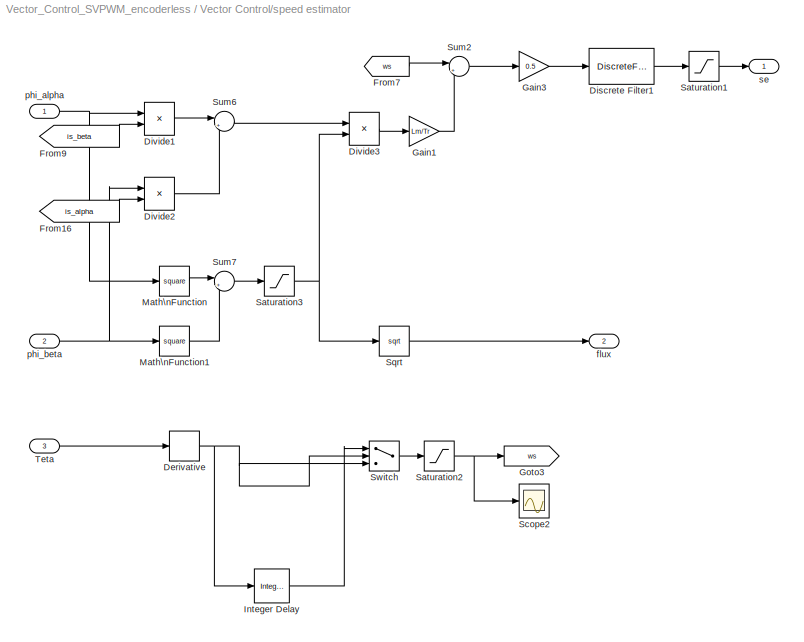
BLOCK [SubSystem] Vector Control/speed estimator
  FunctionWithSeparateData = off
  MaskCallbackString = |
  MaskEnableString = on,on
  MaskHideContents = off
  MaskIconFrame = on
  MaskIconOpaque = on
  MaskIconRotate = none
  MaskIconUnits = autoscale
  MaskPortRotate = default
  MaskPromptString = Rotor Time Constant|Magnetizing Inductance
  MaskStyleString = edit,edit
  MaskToolTipString = on,on
  MaskTunableValueString = on,on
  MaskValueString = Tr|Lm
  MaskVariables = Tr=@1;Lm=@2;
  MaskVisibilityString = on,on
  MinAlgLoopOccurrences = off
  Opaque = off
  Ports = [3, 2]
  PropExecContextOutsideSubsystem = off
  RTWSystemCode = Auto
  RequestExecContextInheritance = off
  SID = 1142
BLOCK [Derivative] Vector Control/speed estimator/Derivative
  SID = 2934
BLOCK [DiscreteFilter] Vector Control/speed estimator/Discrete Filter1
  Denominator = [0.01/Ts+1 -0.01/Ts]
  Ports = [1, 1]
  SID = 3578
  SampleTime = Ts
BLOCK [Product] Vector Control/speed estimator/Divide1
  InputSameDT = off
  Inputs = **
  OutDataType = fixdt(1, 16)
  OutDataTypeMode = Inherit via internal rule
  OutDataTypeStr = Inherit: Inherit via internal rule
  OutScaling = 2^-10
  Ports = [2, 1]
  RndMeth = Floor
  SID = 976
  SaturateOnIntegerOverflow = off
BLOCK [Product] Vector Control/speed estimator/Divide2
  InputSameDT = off
  Inputs = **
  OutDataType = fixdt(1, 16)
  OutDataTypeMode = Inherit via internal rule
  OutDataTypeStr = Inherit: Inherit via internal rule
  OutScaling = 2^-10
  Ports = [2, 1]
  RndMeth = Floor
  SID = 981
  SaturateOnIntegerOverflow = off
BLOCK [Product] Vector Control/speed estimator/Divide3
  InputSameDT = off
  Inputs = */
  OutDataType = fixdt(1, 16)
  OutDataTypeMode = Inherit via internal rule
  OutDataTypeStr = Inherit: Inherit via internal rule
  OutScaling = 2^-10
  Ports = [2, 1]
  RndMeth = Floor
  SID = 984
  SaturateOnIntegerOverflow = off
BLOCK [From] Vector Control/speed estimator/From16
  CloseFcn = tagdialog Close
  GotoTag = is_alpha
  SID = 983
  TagVisibility = global
BLOCK [From] Vector Control/speed estimator/From7
  CloseFcn = tagdialog Close
  GotoTag = ws
  SID = 975
  TagVisibility = global
BLOCK [From] Vector Control/speed estimator/From9
  CloseFcn = tagdialog Close
  GotoTag = is_beta
  SID = 979
  TagVisibility = global
BLOCK [Gain] Vector Control/speed estimator/Gain1
  Gain = Lm/Tr
  OutDataType = fixdt(1, 16)
  OutDataTypeMode = Inherit via internal rule
  OutDataTypeStr = Inherit: Inherit via internal rule
  OutScaling = 2^0
  ParamDataTypeStr = Inherit: Inherit via internal rule
  ParameterDataType = fixdt(1, 16)
  ParameterDataTypeMode = Inherit via internal rule
  ParameterScaling = 2^0
  SID = 991
  SaturateOnIntegerOverflow = off
BLOCK [Gain] Vector Control/speed estimator/Gain3
  Gain = 0.5
  OutDataType = fixdt(1, 16)
  OutDataTypeMode = Inherit via internal rule
  OutDataTypeStr = Inherit: Inherit via internal rule
  OutScaling = 2^0
  ParamDataTypeStr = Inherit: Inherit via internal rule
  ParameterDataType = fixdt(1, 16)
  ParameterDataTypeMode = Inherit via internal rule
  ParameterScaling = 2^0
  SID = 1004
  SaturateOnIntegerOverflow = off
BLOCK [Goto] Vector Control/speed estimator/Goto3
  GotoTag = ws
  SID = 2908
  TagVisibility = global
BLOCK [Reference] Vector Control/speed estimator/Integer Delay  REF=simulink/Discrete/Integer Delay
  NumDelays = 10
  Ports = [1, 1]
  SID = 3551
  SourceBlock = simulink/Discrete/Integer Delay
  SourceType = Integer Delay
  samptime = Ts
  vinit = 0.0
BLOCK [Math] Vector Control/speed estimator/Math\nFunction
  Operator = square
  OutDataType = fixdt(1, 16)
  OutScaling = 2^0
  Ports = [1, 1]
  SID = 990
BLOCK [Math] Vector Control/speed estimator/Math\nFunction1
  Operator = square
  OutDataType = fixdt(1, 16)
  OutScaling = 2^0
  Ports = [1, 1]
  SID = 995
BLOCK [Saturate] Vector Control/speed estimator/Saturation1
  LowerLimit = -1000
  OutDataType = fixdt(1, 16)
  OutScaling = 2^0
  Ports = [1, 1]
  SID = 2884
  SampleTime = Ts
  UpperLimit = 1000
BLOCK [Saturate] Vector Control/speed estimator/Saturation2
  LowerLimit = -1000
  OutDataType = fixdt(1, 16)
  OutScaling = 2^0
  Ports = [1, 1]
  SID = 3556
  SampleTime = Ts
  UpperLimit = 1000
BLOCK [Saturate] Vector Control/speed estimator/Saturation3
  LowerLimit = 1e-6
  OutDataType = fixdt(1, 16)
  OutScaling = 2^0
  Ports = [1, 1]
  SID = 998
  SampleTime = Ts
  UpperLimit = 5
BLOCK [Scope] Vector Control/speed estimator/Scope2
  DataFormat = StructureWithTime
  Floating = off
  LimitDataPoints = off
  NumInputPorts = 1
  Ports = [1]
  SID = 3500
  SampleTime = 0
  SaveName = ScopeData6
  YMax = 0.97875
  YMin = 0.978175
  ZoomMode = yonly
BLOCK [Sqrt] Vector Control/speed estimator/Sqrt
  SID = 2792
  SampleTime = Ts
BLOCK [Sum] Vector Control/speed estimator/Sum2
  IconShape = round
  InputSameDT = off
  Inputs = |+-
  OutDataType = fixdt(1, 16)
  OutDataTypeMode = Inherit via internal rule
  OutDataTypeStr = Inherit: Inherit via internal rule
  OutScaling = 2^0
  Ports = [2, 1]
  SID = 974
  SaturateOnIntegerOverflow = off
BLOCK [Sum] Vector Control/speed estimator/Sum6
  IconShape = round
  InputSameDT = off
  Inputs = |+-
  OutDataType = fixdt(1, 16)
  OutDataTypeMode = Inherit via internal rule
  OutDataTypeStr = Inherit: Inherit via internal rule
  OutScaling = 2^0
  Ports = [2, 1]
  SID = 980
  SaturateOnIntegerOverflow = off
BLOCK [Sum] Vector Control/speed estimator/Sum7
  IconShape = round
  InputSameDT = off
  Inputs = |++
  OutDataType = fixdt(1, 16)
  OutDataTypeMode = Inherit via internal rule
  OutDataTypeStr = Inherit: Inherit via internal rule
  OutScaling = 2^0
  Ports = [2, 1]
  SID = 996
  SaturateOnIntegerOverflow = off
BLOCK [Switch] Vector Control/speed estimator/Switch
  InputSameDT = off
  OutDataType = fixdt(1, 16)
  OutScaling = 2^0
  SID = 3552
  SampleTime = Ts
  SaturateOnIntegerOverflow = off
  Threshold = 1000
BLOCK [Inport] Vector Control/speed estimator/Teta
  IconDisplay = Port number
  Port = 3
  SID = 1367
BLOCK [Outport] Vector Control/speed estimator/flux
  IconDisplay = Port number
  Port = 2
  SID = 2836
BLOCK [Inport] Vector Control/speed estimator/phi_alpha
  IconDisplay = Port number
  SID = 1144
BLOCK [Inport] Vector Control/speed estimator/phi_beta
  IconDisplay = Port number
  Port = 2
  SID = 1145
BLOCK [Outport] Vector Control/speed estimator/se
  IconDisplay = Port number
  SID = 1143
BLOCK [Inport] Vector Control/speed*
  IconDisplay = Port number
  SID = 1011
BLOCK [Outport] Vector Control/usalpha_ref
  IconDisplay = Port number
  OutDataType = fixdt(1, 16)
  OutScaling = 2^0
  SID = 1119
BLOCK [Outport] Vector Control/usbeta_ref
  IconDisplay = Port number
  OutDataType = fixdt(1, 16)
  OutScaling = 2^0
  Port = 2
  SID = 1120
BLOCK [SubSystem] Vector Control/usdc
  FunctionWithSeparateData = off
  MaskHideContents = off
  MinAlgLoopOccurrences = off
  Opaque = off
  Ports = [0, 1]
  PropExecContextOutsideSubsystem = off
  RTWSystemCode = Auto
  RequestExecContextInheritance = off
  SID = 1103
BLOCK [Product] Vector Control/usdc/Divide2
  InputSameDT = off
  OutDataType = fixdt(1, 16)
  OutDataTypeMode = Inherit via internal rule
  OutDataTypeStr = Inherit: Inherit via internal rule
  OutScaling = 2^-10
  Ports = [2, 1]
  RndMeth = Floor
  SID = 1104
  SaturateOnIntegerOverflow = off
BLOCK [From] Vector Control/usdc/From8
  CloseFcn = tagdialog Close
  GotoTag = ws
  SID = 1105
  TagVisibility = global
BLOCK [From] Vector Control/usdc/From9
  CloseFcn = tagdialog Close
  GotoTag = isq
  SID = 1106
  TagVisibility = global
BLOCK [Gain] Vector Control/usdc/Gain4
  Gain = -1
  OutDataType = fixdt(1, 16)
  OutDataTypeMode = Inherit via internal rule
  OutDataTypeStr = Inherit: Inherit via internal rule
  OutScaling = 2^0
  ParamDataTypeStr = Inherit: Inherit via internal rule
  ParameterDataType = fixdt(1, 16)
  ParameterDataTypeMode = Inherit via internal rule
  ParameterScaling = 2^0
  SID = 1107
  SaturateOnIntegerOverflow = off
BLOCK [Gain] Vector Control/usdc/Gain5
  Gain = Ls*lou
  OutDataType = fixdt(1, 16)
  OutDataTypeMode = Inherit via internal rule
  OutDataTypeStr = Inherit: Inherit via internal rule
  OutScaling = 2^0
  ParamDataTypeStr = Inherit: Inherit via internal rule
  ParameterDataType = fixdt(1, 16)
  ParameterDataTypeMode = Inherit via internal rule
  ParameterScaling = 2^0
  SID = 1108
  SaturateOnIntegerOverflow = off
BLOCK [Outport] Vector Control/usdc/usdc
  IconDisplay = Port number
  SID = 1109
BLOCK [SubSystem] Vector Control/usqc
  FunctionWithSeparateData = off
  MaskHideContents = off
  MinAlgLoopOccurrences = off
  Opaque = off
  Ports = [0, 1]
  PropExecContextOutsideSubsystem = off
  RTWSystemCode = Auto
  RequestExecContextInheritance = off
  SID = 1110
BLOCK [Product] Vector Control/usqc/Divide1
  InputSameDT = off
  OutDataType = fixdt(1, 16)
  OutDataTypeMode = Inherit via internal rule
  OutDataTypeStr = Inherit: Inherit via internal rule
  OutScaling = 2^-10
  Ports = [2, 1]
  RndMeth = Floor
  SID = 1111
  SaturateOnIntegerOverflow = off
BLOCK [From] Vector Control/usqc/From2
  CloseFcn = tagdialog Close
  GotoTag = ws
  SID = 1112
  TagVisibility = global
BLOCK [From] Vector Control/usqc/From4
  CloseFcn = tagdialog Close
  GotoTag = isd
  SID = 1113
  TagVisibility = global
BLOCK [From] Vector Control/usqc/From5
  CloseFcn = tagdialog Close
  GotoTag = phird
  SID = 1114
  TagVisibility = global
BLOCK [Gain] Vector Control/usqc/Gain1
  Gain = Ls*lou
  OutDataType = fixdt(1, 16)
  OutDataTypeMode = Inherit via internal rule
  OutDataTypeStr = Inherit: Inherit via internal rule
  OutScaling = 2^0
  ParamDataTypeStr = Inherit: Inherit via internal rule
  ParameterDataType = fixdt(1, 16)
  ParameterDataTypeMode = Inherit via internal rule
  ParameterScaling = 2^0
  SID = 1115
  SaturateOnIntegerOverflow = off
BLOCK [Gain] Vector Control/usqc/Gain2
  Gain = Lm/Lr
  OutDataType = fixdt(1, 16)
  OutDataTypeMode = Inherit via internal rule
  OutDataTypeStr = Inherit: Inherit via internal rule
  OutScaling = 2^0
  ParamDataTypeStr = Inherit: Inherit via internal rule
  ParameterDataType = fixdt(1, 16)
  ParameterDataTypeMode = Inherit via internal rule
  ParameterScaling = 2^0
  SID = 1116
  SaturateOnIntegerOverflow = off
BLOCK [Sum] Vector Control/usqc/Sum2
  IconShape = round
  InputSameDT = off
  Inputs = |++
  OutDataType = fixdt(1, 16)
  OutDataTypeMode = Inherit via internal rule
  OutDataTypeStr = Inherit: Inherit via internal rule
  OutScaling = 2^0
  Ports = [2, 1]
  SID = 1117
  SaturateOnIntegerOverflow = off
BLOCK [Outport] Vector Control/usqc/udqc
  IconDisplay = Port number
  SID = 1118
BLOCK [Reference] d  REF=simulink/Signal\nRouting/Manual Switch
  FunctionWithSeparateData = off
  Ports = [2, 1]
  RTWMemSecDataConstants = Inherit from model
  RTWMemSecDataInternal = Inherit from model
  RTWMemSecDataParameters = Inherit from model
  RTWMemSecFuncExecute = Inherit from model
  RTWMemSecFuncInitTerm = Inherit from model
  SID = 10
  ShowPortLabels = FromPortIcon
  SourceBlock = simulink/Signal\nRouting/Manual Switch
  SourceType = Manual Switch
  SystemSampleTime = -1
  action = 0
  sw = 1
  varsize = off
BLOCK [Reference] powergui  REF=powerlib/powergui
  DisableRonSwitches = off
  DisableSnubberDevices = off
  DisableVfSwitches = off
  DisplayEquations = off
  DisplayStyle = off
  EnableUseOfTLC = off
  Frange = [0:2:500]
  FreqAxis = off
  FunctionMessages = off
  FunctionWithSeparateData = off
  HookPort = off
  Interpol = off
  MaxFrequency = 1000
  Ports = []
  Priority = 2
  RTWMemSecDataConstants = Inherit from model
  RTWMemSecDataInternal = Inherit from model
  RTWMemSecDataParameters = Inherit from model
  RTWMemSecFuncExecute = Inherit from model
  RTWMemSecFuncInitTerm = Inherit from model
  ResistiveCurrentMeasurement = off
  RestoreLinks = warning
  RmsSteady = 1
  SID = 115
  SPID = off
  SampleTime = Ts
  ShowGrid = off
  ShowPortLabels = FromPortIcon
  SourceBlock = powerlib/powergui
  SourceType = PSB option menu block
  StartTime = 0.0
  SwTol = 0
  SystemSampleTime = -1
  Ts = 0
  UserData = DataTag3
  UserDataPersistent = on
  Xlog = on
  Ylog = off
  ZoomFFT = on
  cycles = 1
  display = off
  echomessages = off
  frequency = 60
  frequencyindice = 0
  frequencyindicesteady = 1
  fundamental = 60
  methode = off
  save = off
  variable = ZData
  x0status = blocks
BLOCK [Reference] r  REF=powerlib/Elements/Series RLC Branch
  BranchType = L
  Capacitance = 1e-6
  DialogController = POWERSYS.PowerSysDialog
  Inductance = 0.1e-3
  InitialCurrent = 0
  InitialVoltage = 0
  LConnTagsString = __new0
  LeftPortType = p1
  Measurements = None
  PhysicalDomain = powersysdomain
  Ports = [0, 0, 0, 0, 0, 1, 1]
  RConnTagsString = __new0
  Resistance = 8e-6
  RightPortType = p1
  SID = 915
  SetiL0 = off
  Setx0 = off
  SourceBlock = powerlib/Elements/Series RLC Branch
  SourceType = Series RLC Branch
  SubClassName = unknown
BLOCK [Reference] r1  REF=powerlib/Elements/Series RLC Branch
  BranchType = L
  Capacitance = 1e-6
  DialogController = POWERSYS.PowerSysDialog
  Inductance = 0.1e-3
  InitialCurrent = 0
  InitialVoltage = 0
  LConnTagsString = __new0
  LeftPortType = p1
  Measurements = None
  PhysicalDomain = powersysdomain
  Ports = [0, 0, 0, 0, 0, 1, 1]
  RConnTagsString = __new0
  Resistance = 8e-6
  RightPortType = p1
  SID = 916
  SetiL0 = off
  Setx0 = off
  SourceBlock = powerlib/Elements/Series RLC Branch
  SourceType = Series RLC Branch
  SubClassName = unknown
BLOCK [Reference] r2  REF=powerlib/Elements/Series RLC Branch
  BranchType = L
  Capacitance = 1e-6
  DialogController = POWERSYS.PowerSysDialog
  Inductance = 0.1e-3
  InitialCurrent = 0
  InitialVoltage = 0
  LConnTagsString = __new0
  LeftPortType = p1
  Measurements = None
  PhysicalDomain = powersysdomain
  Ports = [0, 0, 0, 0, 0, 1, 1]
  RConnTagsString = __new0
  Resistance = 8e-6
  RightPortType = p1
  SID = 917
  SetiL0 = off
  Setx0 = off
  SourceBlock = powerlib/Elements/Series RLC Branch
  SourceType = Series RLC Branch
  SubClassName = unknown
BLOCK [Reference] r3  REF=powerlib/Elements/Series RLC Branch
  BranchType = RC
  Capacitance = 1e-6
  DialogController = POWERSYS.PowerSysDialog
  Inductance = 1e-3
  InitialCurrent = 0
  InitialVoltage = 0
  LConnTagsString = __new0
  LeftPortType = p1
  Measurements = None
  PhysicalDomain = powersysdomain
  Ports = [0, 0, 0, 0, 0, 1, 1]
  RConnTagsString = __new0
  Resistance = 0.01
  RightPortType = p1
  SID = 918
  SetiL0 = off
  Setx0 = off
  SourceBlock = powerlib/Elements/Series RLC Branch
  SourceType = Series RLC Branch
  SubClassName = unknown
BLOCK [Reference] r4  REF=powerlib/Elements/Series RLC Branch
  BranchType = RC
  Capacitance = 1e-6
  DialogController = POWERSYS.PowerSysDialog
  Inductance = 1e-3
  InitialCurrent = 0
  InitialVoltage = 0
  LConnTagsString = __new0
  LeftPortType = p1
  Measurements = None
  PhysicalDomain = powersysdomain
  Ports = [0, 0, 0, 0, 0, 1, 1]
  RConnTagsString = __new0
  Resistance = 0.01
  RightPortType = p1
  SID = 919
  SetiL0 = off
  Setx0 = off
  SourceBlock = powerlib/Elements/Series RLC Branch
  SourceType = Series RLC Branch
  SubClassName = unknown
BLOCK [Reference] r5  REF=powerlib/Elements/Series RLC Branch
  BranchType = RC
  Capacitance = 1e-6
  DialogController = POWERSYS.PowerSysDialog
  Inductance = 1e-3
  InitialCurrent = 0
  InitialVoltage = 0
  LConnTagsString = __new0
  LeftPortType = p1
  Measurements = None
  PhysicalDomain = powersysdomain
  Ports = [0, 0, 0, 0, 0, 1, 1]
  RConnTagsString = __new0
  Resistance = 0.01
  RightPortType = p1
  SID = 920
  SetiL0 = off
  Setx0 = off
  SourceBlock = powerlib/Elements/Series RLC Branch
  SourceType = Series RLC Branch
  SubClassName = unknown
BLOCK [Reference] r6  REF=powerlib/Elements/Series RLC Branch
  BranchType = RL
  Capacitance = 1e-6
  DialogController = POWERSYS.PowerSysDialog
  Inductance = 1e-6
  InitialCurrent = 0
  InitialVoltage = 0
  LConnTagsString = __new0
  LeftPortType = p1
  Measurements = None
  PhysicalDomain = powersysdomain
  Ports = [0, 0, 0, 0, 0, 1, 1]
  RConnTagsString = __new0
  Resistance = 1e-4
  RightPortType = p1
  SID = 921
  SetiL0 = off
  Setx0 = off
  SourceBlock = powerlib/Elements/Series RLC Branch
  SourceType = Series RLC Branch
  SubClassName = unknown
BLOCK [Reference] r7  REF=powerlib/Elements/Series RLC Branch
  BranchType = RL
  Capacitance = 1e-6
  DialogController = POWERSYS.PowerSysDialog
  Inductance = 1e-6
  InitialCurrent = 0
  InitialVoltage = 0
  LConnTagsString = __new0
  LeftPortType = p1
  Measurements = None
  PhysicalDomain = powersysdomain
  Ports = [0, 0, 0, 0, 0, 1, 1]
  RConnTagsString = __new0
  Resistance = 1e-4
  RightPortType = p1
  SID = 922
  SetiL0 = off
  Setx0 = off
  SourceBlock = powerlib/Elements/Series RLC Branch
  SourceType = Series RLC Branch
  SubClassName = unknown
BLOCK [Reference] u  REF=powerlib/Measurements/Voltage Measurement
  AttributesFormatString = \\n
  DialogController = POWERSYS.PowerSysDialog
  FunctionWithSeparateData = off
  OutputType = Magnitude
  PSBequivalent = 0
  PhasorSimulation = off
  Ports = [0, 1, 0, 0, 0, 2]
  RTWMemSecDataConstants = Inherit from model
  RTWMemSecDataInternal = Inherit from model
  RTWMemSecDataParameters = Inherit from model
  RTWMemSecFuncExecute = Inherit from model
  RTWMemSecFuncInitTerm = Inherit from model
  SID = 923
  ShowPortLabels = FromPortIcon
  SourceBlock = powerlib/Measurements/Voltage Measurement
  SourceType = Voltage Measurement
  SystemSampleTime = -1
  Tag = PoWeRsYsTeMmEaSuReMeNt
ANNOTATION (root): <copyright redacted>
ANNOTATION (root): Detuned Paramters:\nRs=2.82\nLs=0.20\nlou=0.12\nTr=0.059
ANNOTATION (root): UDC
ANNOTATION (root): Vector Control of AC Motor Drive
ANNOTATION Vector Control/flux estimator: Current Model
ANNOTATION Vector Control/flux estimator: Park
ANNOTATION Vector Control/flux estimator: Voltage Model
LINE       /    1:1 ->       /Mux:2
LINE       /    2:1 ->       /Mux:3
LINE       /    3:1 ->       /Mux:4
LINE       /    :1 ->       /Mux:1
LINE       /Band-Limited\nWhite Noise1:1 ->       /Sum1:2
LINE       /Band-Limited\nWhite Noise2:1 ->       /Sum2:2
LINE       /Band-Limited\nWhite Noise3:1 ->       /Sum3:2
LINE       /Band-Limited\nWhite Noise4:1 ->       /Sum4:2
LINE       /Demux:1 ->       /Sum2:1
LINE       /Demux:2 ->       /Sum1:1
LINE       /Demux:3 ->       /Sum3:1
LINE       /Demux:4 ->       /Sum4:1
LINE       /Mux:1 ->       /is_abc :1
NET       /Sum1:1 ->       /    1:1,       /Scope1:2
NET       /Sum2:1 ->       /    :1,       /Scope1:1
LINE       /Sum3:1 ->       /    2:1
LINE       /Sum4:1 ->       /    3:1
LINE       /is_abc:1 ->       /Demux:1
LINE       :1 -> Demux:1
LINE  1:1 -> Goto5:1
LINE  2:1 -> Mux:1
LINE  3:1 -> Mux:2
LINE  4:1 -> Mux:3
LINE  5:1 -> Mux:4
LINE  :1 -> Goto4:1
NET Bus\nSelector1:1 -> Integer Delay1:1, Scope:3
NET Bus\nSelector1:2 -> Goto2:1, Scope:4
LINE Bus\nSelector2:1 -> Gain4:1
LINE Bus\nSelector2:2 -> Gain1:1
LINE Bus\nSelector3:1 -> Gain2:1
LINE Bus\nSelector3:2 -> Gain3:1
LINE Bus\nSelector3:3 -> Gain5:1
LINE Bus\nSelector3:4 -> Gain6:1
LINE Bus\nSelector:1 -> Scope:2
LINE Constant\nspeed1:1 -> Vector Control:2
LINE Constant\nspeed:1 -> d:1
LINE Constant\ntorque:1 -> Torque\nselection\n(N.m):1
LINE Demux:1 -> Goto6:1
LINE Demux:2 -> Goto7:1
LINE Demux:3 -> Goto8:1
LINE Demux:4 -> Goto9:1
LINE From4:1 -> Scope:1
LINE Gain1:1 ->  1:1
LINE Gain2:1 ->  2:1
LINE Gain3:1 ->  3:1
LINE Gain4:1 ->  :1
LINE Gain5:1 ->  4:1
LINE Gain6:1 ->  5:1
NET Induction Motor\n50 HP // 460 V:1 -> Bus\nSelector1:1, Bus\nSelector2:1, Bus\nSelector3:1, Bus\nSelector:1
LINE Integer Delay1:1 -> Goto:1
LINE Integer Delay3:1 -> Goto3:1
LINE Mux:1 ->       :1
LINE SVPWM/Bias1:1 -> SVPWM/Mux:2
LINE SVPWM/Bias2:1 -> SVPWM/Mux:6
LINE SVPWM/Bias:1 -> SVPWM/Mux:4
LINE SVPWM/Delay/ Demux :1 -> SVPWM/Delay/ Terminator :1
LINE SVPWM/Delay/ SFunction :1 -> SVPWM/Delay/ Demux :1
LINE SVPWM/Delay/ SFunction :2 -> SVPWM/Delay/Tcma:1
LINE SVPWM/Delay/ SFunction :3 -> SVPWM/Delay/Tcmb:1
LINE SVPWM/Delay/ SFunction :4 -> SVPWM/Delay/Tcmc:1
LINE SVPWM/Delay/Sn:1 -> SVPWM/Delay/ SFunction :4
LINE SVPWM/Delay/T0:1 -> SVPWM/Delay/ SFunction :3
LINE SVPWM/Delay/T1:1 -> SVPWM/Delay/ SFunction :1
LINE SVPWM/Delay/T2:1 -> SVPWM/Delay/ SFunction :2
LINE SVPWM/Delay:1 -> SVPWM/Sum:1
LINE SVPWM/Delay:2 -> SVPWM/Sum1:1
LINE SVPWM/Delay:3 -> SVPWM/Sum2:1
LINE SVPWM/From4:1 -> SVPWM/TxTyT0:4
LINE SVPWM/Gain1:1 -> SVPWM/Bias:1
LINE SVPWM/Gain2:1 -> SVPWM/Bias2:1
LINE SVPWM/Gain:1 -> SVPWM/Bias1:1
LINE SVPWM/Mux:1 -> SVPWM/d1:1
NET SVPWM/Relay1:1 -> SVPWM/Gain1:1, SVPWM/Mux:3
NET SVPWM/Relay2:1 -> SVPWM/Gain2:1, SVPWM/Mux:5
NET SVPWM/Relay:1 -> SVPWM/Gain:1, SVPWM/Goto2:1, SVPWM/Mux:1
NET SVPWM/Repeating\nSequence:1 -> SVPWM/Sum1:2, SVPWM/Sum2:2, SVPWM/Sum:2
LINE SVPWM/Sn/ Demux :1 -> SVPWM/Sn/ Terminator :1
LINE SVPWM/Sn/ SFunction :1 -> SVPWM/Sn/ Demux :1
LINE SVPWM/Sn/ SFunction :2 -> SVPWM/Sn/Sn:1
LINE SVPWM/Sn/Ux:1 -> SVPWM/Sn/ SFunction :1
LINE SVPWM/Sn/Uy:1 -> SVPWM/Sn/ SFunction :2
NET SVPWM/Sn:1 -> SVPWM/Delay:4, SVPWM/TxTyT0:3
LINE SVPWM/Sum1:1 -> SVPWM/Relay1:1
LINE SVPWM/Sum2:1 -> SVPWM/Relay2:1
LINE SVPWM/Sum:1 -> SVPWM/Relay:1
LINE SVPWM/TxTyT0/ Demux :1 -> SVPWM/TxTyT0/ Terminator :1
LINE SVPWM/TxTyT0/ SFunction :1 -> SVPWM/TxTyT0/ Demux :1
LINE SVPWM/TxTyT0/ SFunction :2 -> SVPWM/TxTyT0/T1:1
LINE SVPWM/TxTyT0/ SFunction :3 -> SVPWM/TxTyT0/T2:1
LINE SVPWM/TxTyT0/ SFunction :4 -> SVPWM/TxTyT0/T0:1
LINE SVPWM/TxTyT0/Sn:1 -> SVPWM/TxTyT0/ SFunction :3
LINE SVPWM/TxTyT0/UDC:1 -> SVPWM/TxTyT0/ SFunction :4
LINE SVPWM/TxTyT0/Ux:1 -> SVPWM/TxTyT0/ SFunction :1
LINE SVPWM/TxTyT0/Uy:1 -> SVPWM/TxTyT0/ SFunction :2
LINE SVPWM/TxTyT0:1 -> SVPWM/Delay:1
LINE SVPWM/TxTyT0:2 -> SVPWM/Delay:2
LINE SVPWM/TxTyT0:3 -> SVPWM/Delay:3
NET SVPWM/Ux:1 -> SVPWM/Sn:1, SVPWM/TxTyT0:1
NET SVPWM/Uy:1 -> SVPWM/Sn:2, SVPWM/TxTyT0:2
LINE SVPWM/d1:1 -> SVPWM/PWM:1
LINE SVPWM:1 -> 3-Phase Inveter:1
LINE Speed\nstep:1 -> d:2
LINE Torque\nselection\n(N.m):1 -> Induction Motor\n50 HP // 460 V:1
LINE Torque\nstep:1 -> Torque\nselection\n(N.m):2
LINE Vector Control/ /Fcn1:1 -> Vector Control/ /Mux:1
LINE Vector Control/ /Fcn:1 -> Vector Control/ /Mux:2
NET Vector Control/ /Mux:1 -> Vector Control/ /ia:1, Vector Control/ /ib:1
NET Vector Control/ /Teta:1 -> Vector Control/ /Fcn1:1, Vector Control/ /Fcn:1
LINE Vector Control/ /ia:1 -> Vector Control/ /ids_e:1
LINE Vector Control/ /ib:1 -> Vector Control/ /iqs_e:1
LINE Vector Control/ /ids_s:1 -> Vector Control/ /Mux:3
LINE Vector Control/ /iqs_s:1 -> Vector Control/ /Mux:4
LINE Vector Control/ :1 -> Vector Control/Unit Delay2:1
LINE Vector Control/ :2 -> Vector Control/Unit Delay3:1
LINE Vector Control/Discrete Filter2:1 -> Vector Control/Sum:1
LINE Vector Control/Discrete Filter:1 -> Vector Control/Sum3:1
LINE Vector Control/Flux Controller:1 -> Vector Control/Sum5:1
LINE Vector Control/From11:1 -> Vector Control/dq to alpha_beta\nconversion:1
LINE Vector Control/From13:1 -> Vector Control/Gain2:1
LINE Vector Control/From14:1 -> Vector Control/dq to alpha_beta\nconversion:3
LINE Vector Control/From15:1 -> Vector Control/dq to alpha_beta\nconversion:2
LINE Vector Control/From2:1 -> Vector Control/Sum4:2
LINE Vector Control/From3:1 -> Vector Control/Mux2:1
LINE Vector Control/From4:1 -> Vector Control/ :1
LINE Vector Control/From5:1 -> Vector Control/ :2
LINE Vector Control/From6:1 -> Vector Control/ :3
LINE Vector Control/Gain2:1 -> Vector Control/Sum3:2
LINE Vector Control/Gain6:1 -> Vector Control/Discrete Filter:1
LINE Vector Control/Mux2:1 -> Vector Control/Scope1:1
LINE Vector Control/Speed Controller:1 -> Vector Control/Discrete Filter2:1
LINE Vector Control/Sum1:1 -> Vector Control/Goto1:1
LINE Vector Control/Sum3:1 -> Vector Control/Speed Controller:1
LINE Vector Control/Sum4:1 -> Vector Control/Flux Controller:1
LINE Vector Control/Sum5:1 -> Vector Control/Goto2:1
LINE Vector Control/Sum:1 -> Vector Control/Torque Controller:1
LINE Vector Control/Torque Controller:1 -> Vector Control/Sum1:1
LINE Vector Control/Torque Observer/Divide:1 -> Vector Control/Torque Observer/Gain:1
LINE Vector Control/Torque Observer/From1:1 -> Vector Control/Torque Observer/Divide:1
LINE Vector Control/Torque Observer/From3:1 -> Vector Control/Torque Observer/Divide:2
LINE Vector Control/Torque Observer/Gain:1 -> Vector Control/Torque Observer/Te:1
LINE Vector Control/Torque Observer:1 -> Vector Control/Sum:2
LINE Vector Control/Unit Delay2:1 -> Vector Control/Goto9:1
LINE Vector Control/Unit Delay3:1 -> Vector Control/Goto10:1
LINE Vector Control/dq to alpha_beta\nconversion/3to2_alpha:1 -> Vector Control/dq to alpha_beta\nconversion/usalpha:1
LINE Vector Control/dq to alpha_beta\nconversion/3to2_beta:1 -> Vector Control/dq to alpha_beta\nconversion/usbeta:1
LINE Vector Control/dq to alpha_beta\nconversion/Fcn1:1 -> Vector Control/dq to alpha_beta\nconversion/Mux:1
LINE Vector Control/dq to alpha_beta\nconversion/Fcn:1 -> Vector Control/dq to alpha_beta\nconversion/Mux:2
LINE Vector Control/dq to alpha_beta\nconversion/Gain2:1 -> Vector Control/dq to alpha_beta\nconversion/Mux2:1
LINE Vector Control/dq to alpha_beta\nconversion/Gain3:1 -> Vector Control/dq to alpha_beta\nconversion/Mux2:2
LINE Vector Control/dq to alpha_beta\nconversion/Gain4:1 -> Vector Control/dq to alpha_beta\nconversion/Mux2:3
NET Vector Control/dq to alpha_beta\nconversion/Mux2:1 -> Vector Control/dq to alpha_beta\nconversion/3to2_alpha:1, Vector Control/dq to alpha_beta\nconversion/3to2_beta:1
NET Vector Control/dq to alpha_beta\nconversion/Mux:1 -> Vector Control/dq to alpha_beta\nconversion/ia:1, Vector Control/dq to alpha_beta\nconversion/ib:1
NET Vector Control/dq to alpha_beta\nconversion/Teta:1 -> Vector Control/dq to alpha_beta\nconversion/Fcn1:1, Vector Control/dq to alpha_beta\nconversion/Fcn:1
LINE Vector Control/dq to alpha_beta\nconversion/d:1 -> Vector Control/dq to alpha_beta\nconversion/Mux:4
NET Vector Control/dq to alpha_beta\nconversion/ia:1 -> Vector Control/dq to alpha_beta\nconversion/Gain2:1, Vector Control/dq to alpha_beta\nconversion/ic:2
NET Vector Control/dq to alpha_beta\nconversion/ib:1 -> Vector Control/dq to alpha_beta\nconversion/Gain3:1, Vector Control/dq to alpha_beta\nconversion/ic:1
LINE Vector Control/dq to alpha_beta\nconversion/ic:1 -> Vector Control/dq to alpha_beta\nconversion/Gain4:1
LINE Vector Control/dq to alpha_beta\nconversion/q:1 -> Vector Control/dq to alpha_beta\nconversion/Mux:3
LINE Vector Control/dq to alpha_beta\nconversion:1 -> Vector Control/usalpha_ref:1
LINE Vector Control/dq to alpha_beta\nconversion:2 -> Vector Control/usbeta_ref:1
LINE Vector Control/flux estimator/        /Gain1:1 -> Vector Control/flux estimator/        /Sum4:2
LINE Vector Control/flux estimator/        /Gain2:1 -> Vector Control/flux estimator/        /Sum1:1
LINE Vector Control/flux estimator/        /Gain3:1 -> Vector Control/flux estimator/        /Sum1:2
LINE Vector Control/flux estimator/        /Gain4:1 -> Vector Control/flux estimator/        /Sum4:1
LINE Vector Control/flux estimator/        /Sum1:1 -> Vector Control/flux estimator/        /phiqr_s:1
LINE Vector Control/flux estimator/        /Sum4:1 -> Vector Control/flux estimator/        /phidr_s:1
LINE Vector Control/flux estimator/        /ids_s:1 -> Vector Control/flux estimator/        /Gain4:1
LINE Vector Control/flux estimator/        /iqs_s:1 -> Vector Control/flux estimator/        /Gain2:1
LINE Vector Control/flux estimator/        /phids_s:1 -> Vector Control/flux estimator/        /Gain1:1
LINE Vector Control/flux estimator/        /phiqs_s:1 -> Vector Control/flux estimator/        /Gain3:1
NET Vector Control/flux estimator/        :1 -> Vector Control/flux estimator/       :1, Vector Control/flux estimator/phir_alpha:1
NET Vector Control/flux estimator/        :2 -> Vector Control/flux estimator/       :2, Vector Control/flux estimator/phir_beta:1
LINE Vector Control/flux estimator/       /MATLAB Fcn:1 -> Vector Control/flux estimator/       /Teta:1
LINE Vector Control/flux estimator/       /Mux:1 -> Vector Control/flux estimator/       /MATLAB Fcn:1
LINE Vector Control/flux estimator/       /phidr_s:1 -> Vector Control/flux estimator/       /Mux:1
LINE Vector Control/flux estimator/       /phiqr_s:1 -> Vector Control/flux estimator/       /Mux:2
NET Vector Control/flux estimator/       :1 -> Vector Control/flux estimator/ :3, Vector Control/flux estimator/Teta:1, Vector Control/flux estimator/inverse Park:3
LINE Vector Control/flux estimator/      /Discrete-Time\nIntegrator1:1 -> Vector Control/flux estimator/      /phids_s:1
LINE Vector Control/flux estimator/      /Discrete-Time\nIntegrator:1 -> Vector Control/flux estimator/      /phiqs_s:1
LINE Vector Control/flux estimator/      /d:1 -> Vector Control/flux estimator/      /Discrete-Time\nIntegrator1:1
LINE Vector Control/flux estimator/      /q:1 -> Vector Control/flux estimator/      /Discrete-Time\nIntegrator:1
NET Vector Control/flux estimator/      :1 -> Vector Control/flux estimator/        :1, Vector Control/flux estimator/Sum6:2
NET Vector Control/flux estimator/      :2 -> Vector Control/flux estimator/        :2, Vector Control/flux estimator/Sum1:2
LINE Vector Control/flux estimator/     /Discrete-Time\nIntegrator1:1 -> Vector Control/flux estimator/     /Gain1:1
LINE Vector Control/flux estimator/     /Discrete-Time\nIntegrator2:1 -> Vector Control/flux estimator/     /Gain2:1
LINE Vector Control/flux estimator/     /Gain1:1 -> Vector Control/flux estimator/     /Sum:1
LINE Vector Control/flux estimator/     /Gain2:1 -> Vector Control/flux estimator/     /Sum1:1
LINE Vector Control/flux estimator/     /Gain3:1 -> Vector Control/flux estimator/     /Sum1:2
LINE Vector Control/flux estimator/     /Gain4:1 -> Vector Control/flux estimator/     /Sum:2
LINE Vector Control/flux estimator/     /Sum1:1 -> Vector Control/flux estimator/     /ucomp_qs:1
LINE Vector Control/flux estimator/     /Sum:1 -> Vector Control/flux estimator/     /ucomp_ds:1
NET Vector Control/flux estimator/     /d:1 -> Vector Control/flux estimator/     /Discrete-Time\nIntegrator1:1, Vector Control/flux estimator/     /Gain4:1
NET Vector Control/flux estimator/     /q:1 -> Vector Control/flux estimator/     /Discrete-Time\nIntegrator2:1, Vector Control/flux estimator/     /Gain3:1
LINE Vector Control/flux estimator/     :1 -> Vector Control/flux estimator/Sum2:1
LINE Vector Control/flux estimator/     :2 -> Vector Control/flux estimator/Sum3:1
LINE Vector Control/flux estimator/    /Gain1:1 -> Vector Control/flux estimator/    /Sum:2
LINE Vector Control/flux estimator/    /Gain2:1 -> Vector Control/flux estimator/    /Sum1:1
LINE Vector Control/flux estimator/    /Gain3:1 -> Vector Control/flux estimator/    /Sum1:2
LINE Vector Control/flux estimator/    /Gain4:1 -> Vector Control/flux estimator/    /Sum:1
LINE Vector Control/flux estimator/    /Sum1:1 -> Vector Control/flux estimator/    /phiqs_s:1
LINE Vector Control/flux estimator/    /Sum:1 -> Vector Control/flux estimator/    /phids_s:1
LINE Vector Control/flux estimator/    /ids_s:1 -> Vector Control/flux estimator/    /Gain4:1
LINE Vector Control/flux estimator/    /iqs_s:1 -> Vector Control/flux estimator/    /Gain2:1
LINE Vector Control/flux estimator/    /phidr_s:1 -> Vector Control/flux estimator/    /Gain1:1
LINE Vector Control/flux estimator/    /phiqr_s:1 -> Vector Control/flux estimator/    /Gain3:1
LINE Vector Control/flux estimator/    :1 -> Vector Control/flux estimator/Sum6:1
LINE Vector Control/flux estimator/    :2 -> Vector Control/flux estimator/Sum1:1
LINE Vector Control/flux estimator/  /Constant:1 -> Vector Control/flux estimator/  /phiqr_e:1
LINE Vector Control/flux estimator/  /Discrete Tranfer Function/Discrete\nTransfer Fcn:1 -> Vector Control/flux estimator/  /Discrete Tranfer Function/Out:1
LINE Vector Control/flux estimator/  /Discrete Tranfer Function/In:1 -> Vector Control/flux estimator/  /Discrete Tranfer Function/Discrete\nTransfer Fcn:1
LINE Vector Control/flux estimator/  /Discrete Tranfer Function:1 -> Vector Control/flux estimator/  /phidr_e:1
LINE Vector Control/flux estimator/  /Lm:1 -> Vector Control/flux estimator/  /Discrete Tranfer Function:1
LINE Vector Control/flux estimator/  /ids_e:1 -> Vector Control/flux estimator/  /Lm:1
LINE Vector Control/flux estimator/  :1 -> Vector Control/flux estimator/inverse Park:1
LINE Vector Control/flux estimator/  :2 -> Vector Control/flux estimator/inverse Park:2
LINE Vector Control/flux estimator/ /Fcn1:1 -> Vector Control/flux estimator/ /Mux:1
LINE Vector Control/flux estimator/ /Fcn:1 -> Vector Control/flux estimator/ /Mux:2
NET Vector Control/flux estimator/ /Mux:1 -> Vector Control/flux estimator/ /ia:1, Vector Control/flux estimator/ /ib:1
NET Vector Control/flux estimator/ /Teta:1 -> Vector Control/flux estimator/ /Fcn1:1, Vector Control/flux estimator/ /Fcn:1
LINE Vector Control/flux estimator/ /ia:1 -> Vector Control/flux estimator/ /ids_e:1
LINE Vector Control/flux estimator/ /ib:1 -> Vector Control/flux estimator/ /iqs_e:1
LINE Vector Control/flux estimator/ /ids_s:1 -> Vector Control/flux estimator/ /Mux:3
LINE Vector Control/flux estimator/ /iqs_s:1 -> Vector Control/flux estimator/ /Mux:4
LINE Vector Control/flux estimator/ :1 -> Vector Control/flux estimator/  :1
LINE Vector Control/flux estimator/ :2 -> Vector Control/flux estimator/  :2
NET Vector Control/flux estimator/From16:1 -> Vector Control/flux estimator/    :3, Vector Control/flux estimator/ :1, Vector Control/flux estimator/Gain4:1
LINE Vector Control/flux estimator/From1:1 -> Vector Control/flux estimator/Sum4:2
LINE Vector Control/flux estimator/From2:1 -> Vector Control/flux estimator/Sum5:2
LINE Vector Control/flux estimator/From3:1 -> Vector Control/flux estimator/        :3
LINE Vector Control/flux estimator/From4:1 -> Vector Control/flux estimator/        :4
NET Vector Control/flux estimator/From9:1 -> Vector Control/flux estimator/    :4, Vector Control/flux estimator/ :2, Vector Control/flux estimator/Gain2:1
LINE Vector Control/flux estimator/Gain2:1 -> Vector Control/flux estimator/Sum5:1
LINE Vector Control/flux estimator/Gain4:1 -> Vector Control/flux estimator/Sum4:1
LINE Vector Control/flux estimator/Sum1:1 -> Vector Control/flux estimator/     :2
LINE Vector Control/flux estimator/Sum2:1 -> Vector Control/flux estimator/      :1
LINE Vector Control/flux estimator/Sum3:1 -> Vector Control/flux estimator/      :2
LINE Vector Control/flux estimator/Sum4:1 -> Vector Control/flux estimator/Sum2:2
LINE Vector Control/flux estimator/Sum5:1 -> Vector Control/flux estimator/Sum3:2
LINE Vector Control/flux estimator/Sum6:1 -> Vector Control/flux estimator/     :1
LINE Vector Control/flux estimator/inverse Park/Fcn1:1 -> Vector Control/flux estimator/inverse Park/Mux:1
LINE Vector Control/flux estimator/inverse Park/Fcn:1 -> Vector Control/flux estimator/inverse Park/Mux:2
NET Vector Control/flux estimator/inverse Park/Mux:1 -> Vector Control/flux estimator/inverse Park/ia:1, Vector Control/flux estimator/inverse Park/ib:1
NET Vector Control/flux estimator/inverse Park/Teta:1 -> Vector Control/flux estimator/inverse Park/Fcn1:1, Vector Control/flux estimator/inverse Park/Fcn:1
LINE Vector Control/flux estimator/inverse Park/ia:1 -> Vector Control/flux estimator/inverse Park/phidr_s:1
LINE Vector Control/flux estimator/inverse Park/ib:1 -> Vector Control/flux estimator/inverse Park/phiqr_s:1
LINE Vector Control/flux estimator/inverse Park/phidr_e:1 -> Vector Control/flux estimator/inverse Park/Mux:3
LINE Vector Control/flux estimator/inverse Park/phiqr_e:1 -> Vector Control/flux estimator/inverse Park/Mux:4
LINE Vector Control/flux estimator/inverse Park:1 -> Vector Control/flux estimator/    :1
LINE Vector Control/flux estimator/inverse Park:2 -> Vector Control/flux estimator/    :2
LINE Vector Control/flux estimator:1 -> Vector Control/speed estimator:1
LINE Vector Control/flux estimator:2 -> Vector Control/speed estimator:2
NET Vector Control/flux estimator:3 -> Vector Control/Goto4:1, Vector Control/speed estimator:3
LINE Vector Control/flux*:1 -> Vector Control/Sum4:1
NET Vector Control/speed estimator/Derivative:1 -> Vector Control/speed estimator/Integer Delay:1, Vector Control/speed estimator/Switch:2, Vector Control/speed estimator/Switch:3
LINE Vector Control/speed estimator/Discrete Filter1:1 -> Vector Control/speed estimator/Saturation1:1
LINE Vector Control/speed estimator/Divide1:1 -> Vector Control/speed estimator/Sum6:1
LINE Vector Control/speed estimator/Divide2:1 -> Vector Control/speed estimator/Sum6:2
LINE Vector Control/speed estimator/Divide3:1 -> Vector Control/speed estimator/Gain1:1
LINE Vector Control/speed estimator/From16:1 -> Vector Control/speed estimator/Divide2:2
LINE Vector Control/speed estimator/From7:1 -> Vector Control/speed estimator/Sum2:1
LINE Vector Control/speed estimator/From9:1 -> Vector Control/speed estimator/Divide1:2
LINE Vector Control/speed estimator/Gain1:1 -> Vector Control/speed estimator/Sum2:2
LINE Vector Control/speed estimator/Gain3:1 -> Vector Control/speed estimator/Discrete Filter1:1
LINE Vector Control/speed estimator/Integer Delay:1 -> Vector Control/speed estimator/Switch:1
LINE Vector Control/speed estimator/Math\nFunction1:1 -> Vector Control/speed estimator/Sum7:2
LINE Vector Control/speed estimator/Math\nFunction:1 -> Vector Control/speed estimator/Sum7:1
LINE Vector Control/speed estimator/Saturation1:1 -> Vector Control/speed estimator/se:1
NET Vector Control/speed estimator/Saturation2:1 -> Vector Control/speed estimator/Goto3:1, Vector Control/speed estimator/Scope2:1
NET Vector Control/speed estimator/Saturation3:1 -> Vector Control/speed estimator/Divide3:2, Vector Control/speed estimator/Sqrt:1
LINE Vector Control/speed estimator/Sqrt:1 -> Vector Control/speed estimator/flux:1
LINE Vector Control/speed estimator/Sum2:1 -> Vector Control/speed estimator/Gain3:1
LINE Vector Control/speed estimator/Sum6:1 -> Vector Control/speed estimator/Divide3:1
LINE Vector Control/speed estimator/Sum7:1 -> Vector Control/speed estimator/Saturation3:1
LINE Vector Control/speed estimator/Switch:1 -> Vector Control/speed estimator/Saturation2:1
LINE Vector Control/speed estimator/Teta:1 -> Vector Control/speed estimator/Derivative:1
NET Vector Control/speed estimator/phi_alpha:1 -> Vector Control/speed estimator/Divide1:1, Vector Control/speed estimator/Math\nFunction:1
NET Vector Control/speed estimator/phi_beta:1 -> Vector Control/speed estimator/Divide2:1, Vector Control/speed estimator/Math\nFunction1:1
NET Vector Control/speed estimator:1 -> Vector Control/Goto3:1, Vector Control/Mux2:2
LINE Vector Control/speed estimator:2 -> Vector Control/Goto5:1
LINE Vector Control/speed*:1 -> Vector Control/Gain6:1
LINE Vector Control/usdc/Divide2:1 -> Vector Control/usdc/Gain4:1
LINE Vector Control/usdc/From8:1 -> Vector Control/usdc/Divide2:1
LINE Vector Control/usdc/From9:1 -> Vector Control/usdc/Gain5:1
LINE Vector Control/usdc/Gain4:1 -> Vector Control/usdc/usdc:1
LINE Vector Control/usdc/Gain5:1 -> Vector Control/usdc/Divide2:2
LINE Vector Control/usdc:1 -> Vector Control/Sum5:2
LINE Vector Control/usqc/Divide1:1 -> Vector Control/usqc/udqc:1
LINE Vector Control/usqc/From2:1 -> Vector Control/usqc/Divide1:1
LINE Vector Control/usqc/From4:1 -> Vector Control/usqc/Gain1:1
LINE Vector Control/usqc/From5:1 -> Vector Control/usqc/Gain2:1
LINE Vector Control/usqc/Gain1:1 -> Vector Control/usqc/Sum2:1
LINE Vector Control/usqc/Gain2:1 -> Vector Control/usqc/Sum2:2
LINE Vector Control/usqc/Sum2:1 -> Vector Control/usqc/Divide1:2
LINE Vector Control/usqc:1 -> Vector Control/Sum1:2
LINE Vector Control:1 -> SVPWM:1
LINE Vector Control:2 -> SVPWM:2
LINE d:1 -> Vector Control:1
LINE u:1 -> Integer Delay3:1
PLINE 3-Phase Inveter:LConn1 -- Induction Motor\n50 HP // 460 V:LConn1
PLINE 3-Phase Inveter:LConn2 -- Induction Motor\n50 HP // 460 V:LConn2
PLINE 3-Phase Inveter:LConn3 -- Induction Motor\n50 HP // 460 V:LConn3
PNET net1: 3-Phase Inveter:RConn1 -- Parallel RLC Branch:LConn1 -- r6:LConn1 -- u:LConn1
PNET net2: 3-Phase Inveter:RConn2 -- Parallel RLC Branch:RConn1 -- r7:LConn1 -- u:LConn2
PLINE Three-Phase Source:RConn1 -- r:RConn1
PLINE Three-Phase Source:RConn2 -- r1:RConn1
PLINE Three-Phase Source:RConn3 -- r2:RConn1
PNET net3: Universal Bridge:LConn1 -- r3:RConn1 -- r:LConn1
PNET net4: Universal Bridge:LConn2 -- r1:LConn1 -- r4:RConn1
PNET net5: Universal Bridge:LConn3 -- r2:LConn1 -- r5:RConn1
PLINE Universal Bridge:RConn1 -- r6:RConn1
PLINE Universal Bridge:RConn2 -- r7:RConn1
PNET net6: r3:LConn1 -- r4:LConn1 -- r5:LConn1
note: NET lines group one-source signal fan-out (src -> all destinations, sorted); 1:1 wires keep LINE; PNET lines group multi-terminal physical nets as a canonical sorted terminal list (undirected conserving connections); 2-terminal nets keep the pairwise PLINE form
CHART SVPWM/Sn states=1 transitions=1
  STATE_LABEL 'eML_blk_kernel()'
CHART SVPWM/TxTyT0 states=1 transitions=1
  STATE_LABEL 'eML_blk_kernel()'
CHART SVPWM/Delay states=1 transitions=1
  STATE_LABEL 'eML_blk_kernel()'
note: 1 file-system path scrubbed to <path> (not preserved elsewhere — flat text is the only slx artifact)
